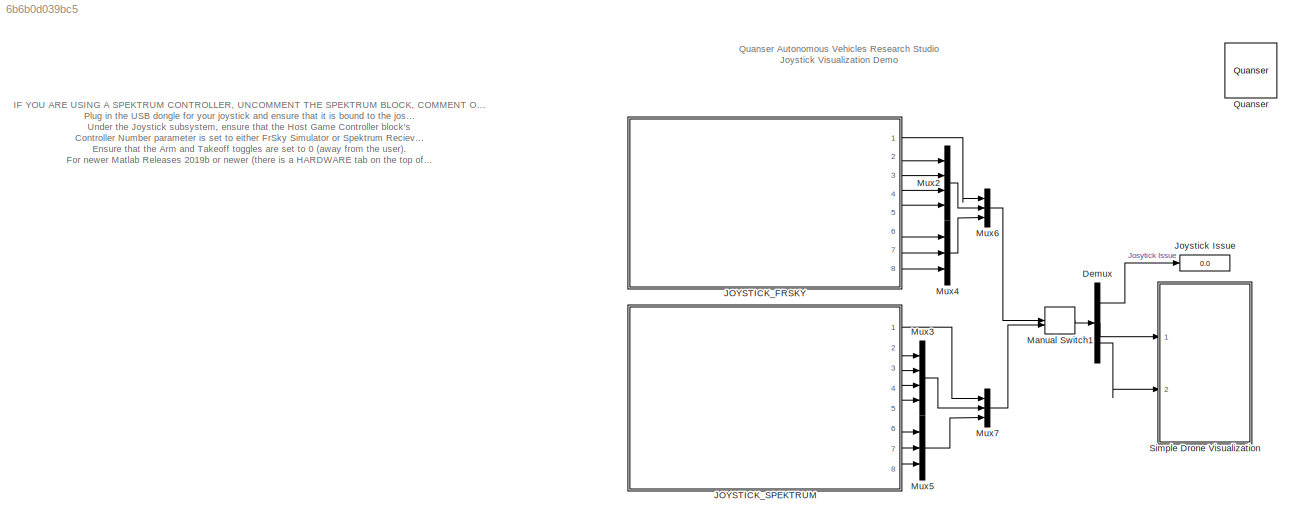
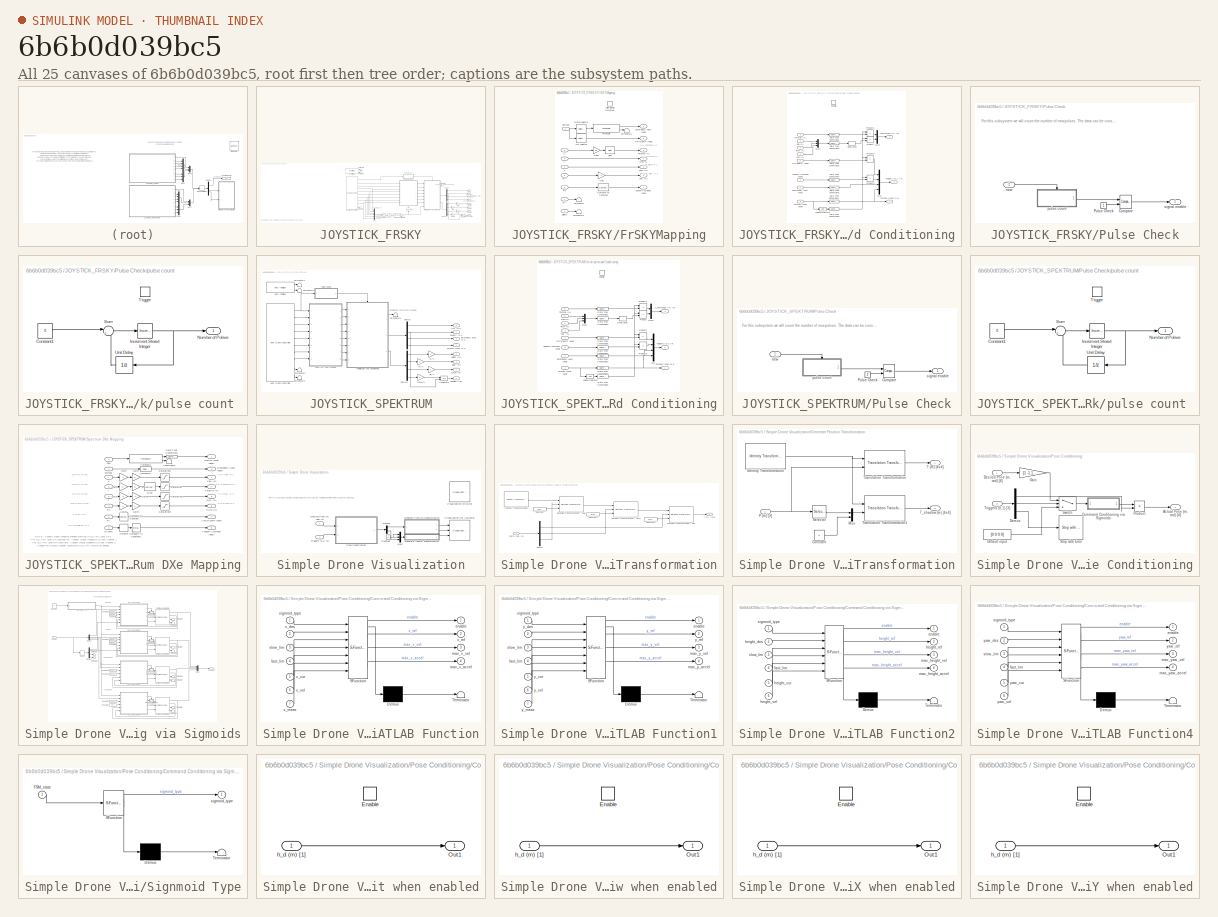
[diagram: thumbnail index - all 25 canvases of the model, root first then tree order]
MODEL slx_6b6b0d039bc5
KIND model
CONFIG AbsTol = auto
CONFIG EnableMultiTasking = on
CONFIG FixedStep = 0.001
CONFIG MaxStep = auto
CONFIG MinStep = auto
CONFIG RelTol = 1e-3
CONFIG SampleTimeConstraint = Unconstrained
CONFIG Solver = ode1
CONFIG SolverName = ode1
CONFIG StartTime = 0.0
CONFIG StopTime = inf
BLOCK [Demux] Demux
  Outputs = [1 4 3]
  Ports = [1, 3]
BLOCK [SubSystem] JOYSTICK_FRSKY
  Ports = [0, 8]
BLOCK [Gain] JOYSTICK_FRSKY/  m//%  
BLOCK [Gain] JOYSTICK_FRSKY/ m//% 
BLOCK [Gain] JOYSTICK_FRSKY/ rad//s//%
BLOCK [Logic] JOYSTICK_FRSKY/AND
  AllPortsSameDT = off
  Inputs = 1
  OutDataTypeStr = boolean
  Ports = [1, 1]
BLOCK [Outport] JOYSTICK_FRSKY/Arm (0,1)
  Port = 6
  VectorParamsAs1DForOutWhenUnconnected = off
BLOCK [Reference] JOYSTICK_FRSKY/Compare  REF=quarc_library/Logic Operations/Compare
  Ports = [2, 1]
  SourceBlock = quarc_library/Logic Operations/Compare
  SourceProductName = QUARC Targets
  SourceType = Compare
BLOCK [Constant] JOYSTICK_FRSKY/Constant
  Value = -1*ones(1,6)
BLOCK [Demux] JOYSTICK_FRSKY/Demux
  Ports = [1, 4]
BLOCK [Demux] JOYSTICK_FRSKY/Demux1
  Ports = [1, 4]
BLOCK [Outport] JOYSTICK_FRSKY/Emergency Stop (0,1)
  Port = 8
  VectorParamsAs1DForOutWhenUnconnected = off
BLOCK [SubSystem] JOYSTICK_FRSKY/FrSKYMapping
  Ports = [8, 7, 1]
BLOCK [Selector] JOYSTICK_FRSKY/FrSKYMapping/Arm selector
  IndexOptions = Index vector (dialog)
  Indices = [2]
  InputPortWidth = 32
  OutputSizes = 1
  Ports = [1, 1]
BLOCK [Outport] JOYSTICK_FRSKY/FrSKYMapping/Arm//Disarm (bool) 
  Port = 6
  VectorParamsAs1DForOutWhenUnconnected = off
BLOCK [Bias] JOYSTICK_FRSKY/FrSKYMapping/Bias
  Bias = 0.5
  SaturateOnIntegerOverflow = off
BLOCK [Inport] JOYSTICK_FRSKY/FrSKYMapping/Buttons
BLOCK [Reference] JOYSTICK_FRSKY/FrSKYMapping/Compare To Constant  REF=simulink/Logic and Bit
Operations/Compare
To Constant
  Ports = [1, 1]
  SourceBlock = simulink/Logic and Bit\nOperations/Compare\nTo Constant
  SourceType = Compare To Constant
BLOCK [Selector] JOYSTICK_FRSKY/FrSKYMapping/E-Stop Selector
  IndexOptions = Index vector (dialog)
  Indices = [1]
  InputPortWidth = 32
  OutputSizes = 1
  Ports = [1, 1]
BLOCK [Outport] JOYSTICK_FRSKY/FrSKYMapping/Emergency Abort (bool)
  VectorParamsAs1DForOutWhenUnconnected = off
BLOCK [Gain] JOYSTICK_FRSKY/FrSKYMapping/Gain
  Gain = -1
BLOCK [Gain] JOYSTICK_FRSKY/FrSKYMapping/Gain1
  Gain = 0.5
BLOCK [Outport] JOYSTICK_FRSKY/FrSKYMapping/Pitch (%)
  Port = 5
  VectorParamsAs1DForOutWhenUnconnected = off
BLOCK [Outport] JOYSTICK_FRSKY/FrSKYMapping/Roll (%)
  Port = 4
  VectorParamsAs1DForOutWhenUnconnected = off
BLOCK [Inport] JOYSTICK_FRSKY/FrSKYMapping/Rx
  Port = 6
BLOCK [Inport] JOYSTICK_FRSKY/FrSKYMapping/Ry
  Port = 7
BLOCK [Inport] JOYSTICK_FRSKY/FrSKYMapping/Rz
  Port = 8
BLOCK [Inport] JOYSTICK_FRSKY/FrSKYMapping/Sliders
  Port = 2
BLOCK [Outport] JOYSTICK_FRSKY/FrSKYMapping/Takeoff//Autoland (bool)
  Port = 7
  VectorParamsAs1DForOutWhenUnconnected = off
BLOCK [Terminator] JOYSTICK_FRSKY/FrSKYMapping/Terminator
BLOCK [Terminator] JOYSTICK_FRSKY/FrSKYMapping/Terminator1
BLOCK [Terminator] JOYSTICK_FRSKY/FrSKYMapping/Terminator2
BLOCK [Reference] JOYSTICK_FRSKY/FrSKYMapping/Threshold  REF=quarc_library/Discontinuities/Threshold
  Ports = [1, 2]
  SourceBlock = quarc_library/Discontinuities/Threshold
  SourceProductName = QUARC Targets
  SourceType = Threshold
BLOCK [Outport] JOYSTICK_FRSKY/FrSKYMapping/Throttle (%)
  Port = 3
  VectorParamsAs1DForOutWhenUnconnected = off
BLOCK [EnablePort] JOYSTICK_FRSKY/FrSKYMapping/Valid Signals Detected
  Ports = []
BLOCK [Outport] JOYSTICK_FRSKY/FrSKYMapping/Yaw (%)
  Port = 2
  VectorParamsAs1DForOutWhenUnconnected = off
BLOCK [Inport] JOYSTICK_FRSKY/FrSKYMapping/x
  Port = 3
BLOCK [Inport] JOYSTICK_FRSKY/FrSKYMapping/y
  Port = 4
BLOCK [Inport] JOYSTICK_FRSKY/FrSKYMapping/z
  Port = 5
BLOCK [Outport] JOYSTICK_FRSKY/Heading (rad) 
  Port = 5
  VectorParamsAs1DForOutWhenUnconnected = off
BLOCK [Outport] JOYSTICK_FRSKY/Height (m) 
  Port = 4
  VectorParamsAs1DForOutWhenUnconnected = off
BLOCK [Reference] JOYSTICK_FRSKY/Host Game Controller  REF=quarc_library/Devices/Peripherals/Host/Host Game Controller
  Ports = [0, 10]
  SourceBlock = quarc_library/Devices/Peripherals/Host/Host Game Controller
  SourceProductName = QUARC Targets
  SourceType = Host Game Controller
BLOCK [Reference] JOYSTICK_FRSKY/Host Initialize  REF=quarc_library/Devices/Peripherals/Host/Host Initialize
  Ports = [0, 2]
  SourceBlock = quarc_library/Devices/Peripherals/Host/Host Initialize
  SourceProductName = QUARC Targets
  SourceType = Host Initialize
BLOCK [SubSystem] JOYSTICK_FRSKY/Initialization and Conditioning
  Ports = [8, 3, 1]
  TreatAsAtomicUnit = on
BLOCK [Inport] JOYSTICK_FRSKY/Initialization and Conditioning/Arm//Disarm (bool)
  Port = 6
BLOCK [Outport] JOYSTICK_FRSKY/Initialization and Conditioning/Commands (%) [4]
  InitialOutput = 0
  Port = 3
  VectorParamsAs1DForOutWhenUnconnected = off
BLOCK [DataTypeConversion] JOYSTICK_FRSKY/Initialization and Conditioning/Data Type Conversion1
  RndMeth = Floor
  SaturateOnIntegerOverflow = off
BLOCK [DataTypeConversion] JOYSTICK_FRSKY/Initialization and Conditioning/Data Type Conversion2
  RndMeth = Floor
  SaturateOnIntegerOverflow = off
BLOCK [DataTypeConversion] JOYSTICK_FRSKY/Initialization and Conditioning/Data Type Conversion3
  RndMeth = Floor
  SaturateOnIntegerOverflow = off
BLOCK [DataTypeConversion] JOYSTICK_FRSKY/Initialization and Conditioning/Data Type Conversion4
  RndMeth = Floor
  SaturateOnIntegerOverflow = off
BLOCK [DataTypeConversion] JOYSTICK_FRSKY/Initialization and Conditioning/Data Type Conversion5
  RndMeth = Floor
  SaturateOnIntegerOverflow = off
BLOCK [DataTypeConversion] JOYSTICK_FRSKY/Initialization and Conditioning/Data Type Conversion6
  RndMeth = Floor
  SaturateOnIntegerOverflow = off
BLOCK [DataTypeConversion] JOYSTICK_FRSKY/Initialization and Conditioning/Data Type Conversion7
  RndMeth = Floor
  SaturateOnIntegerOverflow = off
BLOCK [DeadZone] JOYSTICK_FRSKY/Initialization and Conditioning/Dead Zone
  LowerValue = -0.01
  UpperValue = 0.01
BLOCK [Inport] JOYSTICK_FRSKY/Initialization and Conditioning/Emergency Abort (bool)
BLOCK [EnablePort] JOYSTICK_FRSKY/Initialization and Conditioning/Enable
  Ports = []
  StatesWhenEnabling = reset
BLOCK [Outport] JOYSTICK_FRSKY/Initialization and Conditioning/Joystick Issue (0,1)
  InitialOutput = 0
  VectorParamsAs1DForOutWhenUnconnected = off
BLOCK [Inport] JOYSTICK_FRSKY/Initialization and Conditioning/Joystick Issue (bool)
  Port = 8
BLOCK [Logic] JOYSTICK_FRSKY/Initialization and Conditioning/Logical Operator
  AllPortsSameDT = off
  Operator = NOT
  OutDataTypeStr = boolean
  Ports = [1, 1]
BLOCK [Mux] JOYSTICK_FRSKY/Initialization and Conditioning/Mux
  DisplayOption = bar
  Ports = [4, 1]
BLOCK [Mux] JOYSTICK_FRSKY/Initialization and Conditioning/Mux1
  DisplayOption = bar
  Inputs = 3
  Ports = [3, 1]
BLOCK [Mux] JOYSTICK_FRSKY/Initialization and Conditioning/Mux2
  DisplayOption = bar
  Inputs = 2
  Ports = [2, 1]
BLOCK [Inport] JOYSTICK_FRSKY/Initialization and Conditioning/Pitch (%)
  Port = 5
BLOCK [Product] JOYSTICK_FRSKY/Initialization and Conditioning/Product
  Ports = [2, 1]
BLOCK [Product] JOYSTICK_FRSKY/Initialization and Conditioning/Product1
  Ports = [2, 1]
BLOCK [Product] JOYSTICK_FRSKY/Initialization and Conditioning/Product2
  Ports = [2, 1]
BLOCK [Product] JOYSTICK_FRSKY/Initialization and Conditioning/Product3
  Ports = [2, 1]
BLOCK [Inport] JOYSTICK_FRSKY/Initialization and Conditioning/Roll (%)
  Port = 4
BLOCK [Inport] JOYSTICK_FRSKY/Initialization and Conditioning/Takeoff//AutoLand (bool)
  Port = 7
BLOCK [Inport] JOYSTICK_FRSKY/Initialization and Conditioning/Throttle (%)
  Port = 3
BLOCK [Outport] JOYSTICK_FRSKY/Initialization and Conditioning/Triggers (0,1) [4]
  InitialOutput = 0
  Port = 2
  VectorParamsAs1DForOutWhenUnconnected = off
BLOCK [Inport] JOYSTICK_FRSKY/Initialization and Conditioning/Yaw (%)
  Port = 2
BLOCK [Integrator] JOYSTICK_FRSKY/Integrator
  ExternalReset = falling
  Ports = [2, 1]
BLOCK [Outport] JOYSTICK_FRSKY/Joystick Issue (0,1)
  VectorParamsAs1DForOutWhenUnconnected = off
BLOCK [Mux] JOYSTICK_FRSKY/Mux
  DisplayOption = bar
  Inputs = 6
  Ports = [6, 1]
BLOCK [Logic] JOYSTICK_FRSKY/NOT
  AllPortsSameDT = off
  IconShape = distinctive
  Operator = NOT
  OutDataTypeStr = boolean
  Ports = [1, 1]
BLOCK [SubSystem] JOYSTICK_FRSKY/Pulse Check
  Ports = [1, 1]
  TreatAsAtomicUnit = on
BLOCK [Reference] JOYSTICK_FRSKY/Pulse Check/Compare  REF=quarc_library/Logic Operations/Compare
  Ports = [2, 1]
  SourceBlock = quarc_library/Logic Operations/Compare
  SourceProductName = QUARC Targets
  SourceType = Compare
BLOCK [Constant] JOYSTICK_FRSKY/Pulse Check/Pulse Check
BLOCK [Inport] JOYSTICK_FRSKY/Pulse Check/new
BLOCK [SubSystem] JOYSTICK_FRSKY/Pulse Check/pulse count 
  Ports = [0, 1, 0, 1]
  TreatAsAtomicUnit = on
BLOCK [Constant] JOYSTICK_FRSKY/Pulse Check/pulse count /Constant1
  Value = 0
BLOCK [Reference] JOYSTICK_FRSKY/Pulse Check/pulse count /Increment Stored Integer  REF=simulink/Additional Math
& Discrete/Additional Math:
Increment - Decrement/Increment
Stored Integer
  Ports = [1, 1]
  SourceBlock = simulink/Additional Math\n& Discrete/Additional Math:\nIncrement - Decrement/Increment\nStored Integer
  SourceType = Stored Integer Value Increment
BLOCK [Outport] JOYSTICK_FRSKY/Pulse Check/pulse count /Number of Pulses
  VectorParamsAs1DForOutWhenUnconnected = off
BLOCK [Sum] JOYSTICK_FRSKY/Pulse Check/pulse count /Sum
  Inputs = |++
  Ports = [2, 1]
BLOCK [TriggerPort] JOYSTICK_FRSKY/Pulse Check/pulse count /Trigger
  Ports = []
  StatesWhenEnabling = held
  TriggerType = either
  VariantControl = Variant
BLOCK [UnitDelay] JOYSTICK_FRSKY/Pulse Check/pulse count /Unit Delay
  HasFrameUpgradeWarning = on
  SampleTime = -1
BLOCK [Outport] JOYSTICK_FRSKY/Pulse Check/signal enable
  InitialOutput = 0
  VectorParamsAs1DForOutWhenUnconnected = off
BLOCK [Outport] JOYSTICK_FRSKY/Surge (m) 
  Port = 2
  VectorParamsAs1DForOutWhenUnconnected = off
BLOCK [Outport] JOYSTICK_FRSKY/Sway (m) 
  Port = 3
  VectorParamsAs1DForOutWhenUnconnected = off
BLOCK [Outport] JOYSTICK_FRSKY/Takeoff (0,1)
  Port = 7
  VectorParamsAs1DForOutWhenUnconnected = off
BLOCK [Terminator] JOYSTICK_FRSKY/Terminator
BLOCK [Terminator] JOYSTICK_FRSKY/Terminator1
BLOCK [Terminator] JOYSTICK_FRSKY/Terminator2
BLOCK [Terminator] JOYSTICK_FRSKY/Terminator3
BLOCK [Terminator] JOYSTICK_FRSKY/Terminator4
BLOCK [Reference] JOYSTICK_FRSKY/Threshold  REF=quarc_library/Discontinuities/Threshold
  Ports = [1, 2]
  SourceBlock = quarc_library/Discontinuities/Threshold
  SourceProductName = QUARC Targets
  SourceType = Threshold
BLOCK [Gain] JOYSTICK_FRSKY/m//%
BLOCK [SubSystem] JOYSTICK_SPEKTRUM
  Commented = on
  Ports = [0, 8]
BLOCK [Gain] JOYSTICK_SPEKTRUM/  m//%  
BLOCK [Gain] JOYSTICK_SPEKTRUM/ m//% 
BLOCK [Gain] JOYSTICK_SPEKTRUM/ rad//s//%
BLOCK [Outport] JOYSTICK_SPEKTRUM/Arm (0,1)
  Port = 6
  VectorParamsAs1DForOutWhenUnconnected = off
BLOCK [Demux] JOYSTICK_SPEKTRUM/Demux
  Ports = [1, 4]
BLOCK [Demux] JOYSTICK_SPEKTRUM/Demux1
  Ports = [1, 4]
BLOCK [Outport] JOYSTICK_SPEKTRUM/Emergency Stop (0,1)
  Port = 8
  VectorParamsAs1DForOutWhenUnconnected = off
BLOCK [Outport] JOYSTICK_SPEKTRUM/Heading (rad) 
  Port = 5
  VectorParamsAs1DForOutWhenUnconnected = off
BLOCK [Outport] JOYSTICK_SPEKTRUM/Height (m) 
  Port = 4
  VectorParamsAs1DForOutWhenUnconnected = off
BLOCK [Reference] JOYSTICK_SPEKTRUM/Host Game Controller  REF=quarc_library/Devices/Peripherals/Host/Host Game Controller
  Ports = [0, 10]
  SourceBlock = quarc_library/Devices/Peripherals/Host/Host Game Controller
  SourceProductName = QUARC Targets
  SourceType = Host Game Controller
BLOCK [Reference] JOYSTICK_SPEKTRUM/Host Initialize  REF=quarc_library/Devices/Peripherals/Host/Host Initialize
  Ports = [0, 2]
  SourceBlock = quarc_library/Devices/Peripherals/Host/Host Initialize
  SourceProductName = QUARC Targets
  SourceType = Host Initialize
BLOCK [SubSystem] JOYSTICK_SPEKTRUM/Initialization and Conditioning
  Ports = [8, 3, 1]
  TreatAsAtomicUnit = on
BLOCK [Inport] JOYSTICK_SPEKTRUM/Initialization and Conditioning/Arm//Disarm (bool)
  Port = 7
BLOCK [Outport] JOYSTICK_SPEKTRUM/Initialization and Conditioning/Commands (%) [4]
  InitialOutput = 0
  Port = 3
  VectorParamsAs1DForOutWhenUnconnected = off
BLOCK [DataTypeConversion] JOYSTICK_SPEKTRUM/Initialization and Conditioning/Data Type Conversion1
  RndMeth = Floor
  SaturateOnIntegerOverflow = off
BLOCK [DataTypeConversion] JOYSTICK_SPEKTRUM/Initialization and Conditioning/Data Type Conversion2
  RndMeth = Floor
  SaturateOnIntegerOverflow = off
BLOCK [DataTypeConversion] JOYSTICK_SPEKTRUM/Initialization and Conditioning/Data Type Conversion3
  RndMeth = Floor
  SaturateOnIntegerOverflow = off
BLOCK [DataTypeConversion] JOYSTICK_SPEKTRUM/Initialization and Conditioning/Data Type Conversion4
  RndMeth = Floor
  SaturateOnIntegerOverflow = off
BLOCK [DataTypeConversion] JOYSTICK_SPEKTRUM/Initialization and Conditioning/Data Type Conversion5
  RndMeth = Floor
  SaturateOnIntegerOverflow = off
BLOCK [DataTypeConversion] JOYSTICK_SPEKTRUM/Initialization and Conditioning/Data Type Conversion6
  RndMeth = Floor
  SaturateOnIntegerOverflow = off
BLOCK [DataTypeConversion] JOYSTICK_SPEKTRUM/Initialization and Conditioning/Data Type Conversion7
  RndMeth = Floor
  SaturateOnIntegerOverflow = off
BLOCK [DeadZone] JOYSTICK_SPEKTRUM/Initialization and Conditioning/Dead Zone
  LowerValue = -0.01
  UpperValue = 0.01
BLOCK [Inport] JOYSTICK_SPEKTRUM/Initialization and Conditioning/Emergency Abort (bool)
  Port = 2
BLOCK [EnablePort] JOYSTICK_SPEKTRUM/Initialization and Conditioning/Enable
  Ports = []
  StatesWhenEnabling = reset
BLOCK [Outport] JOYSTICK_SPEKTRUM/Initialization and Conditioning/Joystick Issue (0,1)
  InitialOutput = 0
  VectorParamsAs1DForOutWhenUnconnected = off
BLOCK [Inport] JOYSTICK_SPEKTRUM/Initialization and Conditioning/Joystick Issue (bool)
BLOCK [Logic] JOYSTICK_SPEKTRUM/Initialization and Conditioning/Logical Operator
  AllPortsSameDT = off
  Operator = NOT
  OutDataTypeStr = boolean
  Ports = [1, 1]
BLOCK [Mux] JOYSTICK_SPEKTRUM/Initialization and Conditioning/Mux
  DisplayOption = bar
  Ports = [4, 1]
BLOCK [Mux] JOYSTICK_SPEKTRUM/Initialization and Conditioning/Mux1
  DisplayOption = bar
  Inputs = 3
  Ports = [3, 1]
BLOCK [Mux] JOYSTICK_SPEKTRUM/Initialization and Conditioning/Mux2
  DisplayOption = bar
  Inputs = 2
  Ports = [2, 1]
BLOCK [Inport] JOYSTICK_SPEKTRUM/Initialization and Conditioning/Pitch (%)
  Port = 6
BLOCK [Product] JOYSTICK_SPEKTRUM/Initialization and Conditioning/Product
  Ports = [2, 1]
BLOCK [Product] JOYSTICK_SPEKTRUM/Initialization and Conditioning/Product1
  Ports = [2, 1]
BLOCK [Product] JOYSTICK_SPEKTRUM/Initialization and Conditioning/Product2
  Ports = [2, 1]
BLOCK [Product] JOYSTICK_SPEKTRUM/Initialization and Conditioning/Product3
  Ports = [2, 1]
BLOCK [Inport] JOYSTICK_SPEKTRUM/Initialization and Conditioning/Roll (%)
  Port = 5
BLOCK [Inport] JOYSTICK_SPEKTRUM/Initialization and Conditioning/Takeoff//AutoLand (bool)
  Port = 8
BLOCK [Inport] JOYSTICK_SPEKTRUM/Initialization and Conditioning/Throttle (%)
  Port = 4
BLOCK [Outport] JOYSTICK_SPEKTRUM/Initialization and Conditioning/Triggers (0,1) [4]
  InitialOutput = 0
  Port = 2
  VectorParamsAs1DForOutWhenUnconnected = off
BLOCK [Inport] JOYSTICK_SPEKTRUM/Initialization and Conditioning/Yaw (%)
  Port = 3
BLOCK [Integrator] JOYSTICK_SPEKTRUM/Integrator
  ExternalReset = falling
  Ports = [2, 1]
BLOCK [Outport] JOYSTICK_SPEKTRUM/Joystick Issue (0,1)
  VectorParamsAs1DForOutWhenUnconnected = off
BLOCK [SubSystem] JOYSTICK_SPEKTRUM/Pulse Check
  Ports = [1, 1]
  TreatAsAtomicUnit = on
BLOCK [Reference] JOYSTICK_SPEKTRUM/Pulse Check/Compare  REF=quarc_library/Logic Operations/Compare
  Ports = [2, 1]
  SourceBlock = quarc_library/Logic Operations/Compare
  SourceProductName = QUARC Targets
  SourceType = Compare
BLOCK [Constant] JOYSTICK_SPEKTRUM/Pulse Check/Pulse Check
  Value = 2
BLOCK [Inport] JOYSTICK_SPEKTRUM/Pulse Check/new
BLOCK [SubSystem] JOYSTICK_SPEKTRUM/Pulse Check/pulse count 
  Ports = [0, 1, 0, 1]
  TreatAsAtomicUnit = on
BLOCK [Constant] JOYSTICK_SPEKTRUM/Pulse Check/pulse count /Constant1
  Value = 0
BLOCK [Reference] JOYSTICK_SPEKTRUM/Pulse Check/pulse count /Increment Stored Integer  REF=simulink/Additional Math
& Discrete/Additional Math:
Increment - Decrement/Increment
Stored Integer
  Ports = [1, 1]
  SourceBlock = simulink/Additional Math\n& Discrete/Additional Math:\nIncrement - Decrement/Increment\nStored Integer
  SourceType = Stored Integer Value Increment
BLOCK [Outport] JOYSTICK_SPEKTRUM/Pulse Check/pulse count /Number of Pulses
  VectorParamsAs1DForOutWhenUnconnected = off
BLOCK [Sum] JOYSTICK_SPEKTRUM/Pulse Check/pulse count /Sum
  Inputs = |++
  Ports = [2, 1]
BLOCK [TriggerPort] JOYSTICK_SPEKTRUM/Pulse Check/pulse count /Trigger
  Ports = []
  StatesWhenEnabling = held
  VariantControl = Variant
BLOCK [UnitDelay] JOYSTICK_SPEKTRUM/Pulse Check/pulse count /Unit Delay
  HasFrameUpgradeWarning = on
  SampleTime = -1
BLOCK [Outport] JOYSTICK_SPEKTRUM/Pulse Check/signal enable
  InitialOutput = 0
  VectorParamsAs1DForOutWhenUnconnected = off
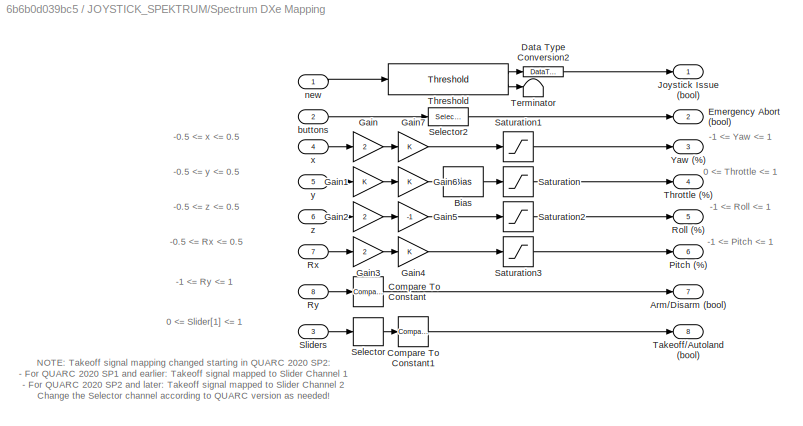
BLOCK [SubSystem] JOYSTICK_SPEKTRUM/Spectrum DXe Mapping
  Ports = [8, 8]
BLOCK [Outport] JOYSTICK_SPEKTRUM/Spectrum DXe Mapping/Arm//Disarm (bool) 
  Port = 7
  VectorParamsAs1DForOutWhenUnconnected = off
BLOCK [Bias] JOYSTICK_SPEKTRUM/Spectrum DXe Mapping/Bias
  Bias = 0.5
  SaturateOnIntegerOverflow = off
BLOCK [Reference] JOYSTICK_SPEKTRUM/Spectrum DXe Mapping/Compare To Constant  REF=simulink/Logic and Bit
Operations/Compare
To Constant
  Ports = [1, 1]
  SourceBlock = simulink/Logic and Bit\nOperations/Compare\nTo Constant
  SourceType = Compare To Constant
BLOCK [Reference] JOYSTICK_SPEKTRUM/Spectrum DXe Mapping/Compare To Constant1  REF=simulink/Logic and Bit
Operations/Compare
To Constant
  Ports = [1, 1]
  SourceBlock = simulink/Logic and Bit\nOperations/Compare\nTo Constant
  SourceType = Compare To Constant
BLOCK [DataTypeConversion] JOYSTICK_SPEKTRUM/Spectrum DXe Mapping/Data Type Conversion2
  RndMeth = Floor
  SaturateOnIntegerOverflow = off
BLOCK [Outport] JOYSTICK_SPEKTRUM/Spectrum DXe Mapping/Emergency Abort (bool)
  Port = 2
  VectorParamsAs1DForOutWhenUnconnected = off
BLOCK [Gain] JOYSTICK_SPEKTRUM/Spectrum DXe Mapping/Gain
  Gain = 2
BLOCK [Gain] JOYSTICK_SPEKTRUM/Spectrum DXe Mapping/Gain1
BLOCK [Gain] JOYSTICK_SPEKTRUM/Spectrum DXe Mapping/Gain2
  Gain = 2
BLOCK [Gain] JOYSTICK_SPEKTRUM/Spectrum DXe Mapping/Gain3
  Gain = 2
BLOCK [Gain] JOYSTICK_SPEKTRUM/Spectrum DXe Mapping/Gain4
BLOCK [Gain] JOYSTICK_SPEKTRUM/Spectrum DXe Mapping/Gain5
  Gain = -1
BLOCK [Gain] JOYSTICK_SPEKTRUM/Spectrum DXe Mapping/Gain6
BLOCK [Gain] JOYSTICK_SPEKTRUM/Spectrum DXe Mapping/Gain7
BLOCK [Outport] JOYSTICK_SPEKTRUM/Spectrum DXe Mapping/Joystick Issue (bool)
  VectorParamsAs1DForOutWhenUnconnected = off
BLOCK [Outport] JOYSTICK_SPEKTRUM/Spectrum DXe Mapping/Pitch (%)
  Port = 6
  VectorParamsAs1DForOutWhenUnconnected = off
BLOCK [Outport] JOYSTICK_SPEKTRUM/Spectrum DXe Mapping/Roll (%)
  Port = 5
  VectorParamsAs1DForOutWhenUnconnected = off
BLOCK [Inport] JOYSTICK_SPEKTRUM/Spectrum DXe Mapping/Rx
  Port = 7
BLOCK [Inport] JOYSTICK_SPEKTRUM/Spectrum DXe Mapping/Ry
  Port = 8
BLOCK [Saturate] JOYSTICK_SPEKTRUM/Spectrum DXe Mapping/Saturation
  LowerLimit = 0
  UpperLimit = 1
BLOCK [Saturate] JOYSTICK_SPEKTRUM/Spectrum DXe Mapping/Saturation1
  LowerLimit = -1
  UpperLimit = 1
BLOCK [Saturate] JOYSTICK_SPEKTRUM/Spectrum DXe Mapping/Saturation2
  LowerLimit = -1
  UpperLimit = 1
BLOCK [Saturate] JOYSTICK_SPEKTRUM/Spectrum DXe Mapping/Saturation3
  LowerLimit = -1
  UpperLimit = 1
BLOCK [Selector] JOYSTICK_SPEKTRUM/Spectrum DXe Mapping/Selector
  IndexOptions = Index vector (dialog)
  Indices = [2]
  InputPortWidth = 2
  OutputSizes = 1
  Ports = [1, 1]
BLOCK [Selector] JOYSTICK_SPEKTRUM/Spectrum DXe Mapping/Selector2
  IndexOptions = Index vector (dialog)
  Indices = [1]
  InputPortWidth = 32
  OutputSizes = 1
  Ports = [1, 1]
BLOCK [Inport] JOYSTICK_SPEKTRUM/Spectrum DXe Mapping/Sliders
  Port = 3
BLOCK [Outport] JOYSTICK_SPEKTRUM/Spectrum DXe Mapping/Takeoff//Autoland (bool)
  Port = 8
  VectorParamsAs1DForOutWhenUnconnected = off
BLOCK [Terminator] JOYSTICK_SPEKTRUM/Spectrum DXe Mapping/Terminator
BLOCK [Reference] JOYSTICK_SPEKTRUM/Spectrum DXe Mapping/Threshold  REF=quarc_library/Discontinuities/Threshold
  Ports = [1, 2]
  SourceBlock = quarc_library/Discontinuities/Threshold
  SourceProductName = QUARC Targets
  SourceType = Threshold
BLOCK [Outport] JOYSTICK_SPEKTRUM/Spectrum DXe Mapping/Throttle (%)
  Port = 4
  VectorParamsAs1DForOutWhenUnconnected = off
BLOCK [Outport] JOYSTICK_SPEKTRUM/Spectrum DXe Mapping/Yaw (%)
  Port = 3
  VectorParamsAs1DForOutWhenUnconnected = off
BLOCK [Inport] JOYSTICK_SPEKTRUM/Spectrum DXe Mapping/buttons
  Port = 2
BLOCK [Inport] JOYSTICK_SPEKTRUM/Spectrum DXe Mapping/new
BLOCK [Inport] JOYSTICK_SPEKTRUM/Spectrum DXe Mapping/x
  Port = 4
BLOCK [Inport] JOYSTICK_SPEKTRUM/Spectrum DXe Mapping/y
  Port = 5
BLOCK [Inport] JOYSTICK_SPEKTRUM/Spectrum DXe Mapping/z
  Port = 6
BLOCK [Outport] JOYSTICK_SPEKTRUM/Surge (m) 
  Port = 2
  VectorParamsAs1DForOutWhenUnconnected = off
BLOCK [Outport] JOYSTICK_SPEKTRUM/Sway (m) 
  Port = 3
  VectorParamsAs1DForOutWhenUnconnected = off
BLOCK [Outport] JOYSTICK_SPEKTRUM/Takeoff (0,1)
  Port = 7
  VectorParamsAs1DForOutWhenUnconnected = off
BLOCK [Terminator] JOYSTICK_SPEKTRUM/Terminator1
BLOCK [Terminator] JOYSTICK_SPEKTRUM/Terminator2
BLOCK [Terminator] JOYSTICK_SPEKTRUM/Terminator3
BLOCK [Terminator] JOYSTICK_SPEKTRUM/Terminator4
BLOCK [Terminator] JOYSTICK_SPEKTRUM/Terminator5
BLOCK [Gain] JOYSTICK_SPEKTRUM/m//%
BLOCK [Display] Joystick Issue
  Decimation = 400
  Ports = [1]
BLOCK [ManualSwitch] Manual Switch1
BLOCK [Mux] Mux2
  DisplayOption = bar
  Ports = [4, 1]
BLOCK [Mux] Mux3
  DisplayOption = bar
  Ports = [4, 1]
BLOCK [Mux] Mux4
  DisplayOption = bar
  Inputs = 3
  Ports = [3, 1]
BLOCK [Mux] Mux5
  DisplayOption = bar
  Inputs = 3
  Ports = [3, 1]
BLOCK [Mux] Mux6
  DisplayOption = bar
  Inputs = 3
  Ports = [3, 1]
BLOCK [Mux] Mux7
  DisplayOption = bar
  Inputs = 3
  Ports = [3, 1]
BLOCK [Reference] Quanser  REF=quarc_library/Logos/Quanser
  Ports = []
  SourceBlock = quarc_library/Logos/Quanser
  SourceProductName = QUARC Targets
  SourceType = Powered by Quanser
BLOCK [SubSystem] Simple Drone Visualization
  Ports = [2]
BLOCK [Constant] Simple Drone Visualization/Constant
  Value = 0
BLOCK [Demux] Simple Drone Visualization/Demux
  Outputs = [3 1]
  Ports = [1, 2]
BLOCK [Inport] Simple Drone Visualization/Desired Pose (m, rad) [4]
BLOCK [SubSystem] Simple Drone Visualization/Generate Angular Transformation
  Ports = [1, 1]
BLOCK [Constant] Simple Drone Visualization/Generate Angular Transformation/Constant
  Value = [0 0 1]
BLOCK [Constant] Simple Drone Visualization/Generate Angular Transformation/Constant1
  Value = [0 1 0]
BLOCK [Constant] Simple Drone Visualization/Generate Angular Transformation/Constant2
  Value = [1 0 0]
BLOCK [Demux] Simple Drone Visualization/Generate Angular Transformation/Demux
  Outputs = 3
  Ports = [1, 3]
BLOCK [Reference] Simple Drone Visualization/Generate Angular Transformation/Identity Transformation  REF=quarc_library/Math Operations/Homogeneous
Transformations/Identity 
Transformation
  Ports = [0, 1]
  SourceBlock = quarc_library/Math Operations/Homogeneous\nTransformations/Identity \nTransformation
  SourceProductName = QUARC Targets
  SourceType = Identity Transformation
BLOCK [Reference] Simple Drone Visualization/Generate Angular Transformation/Rotation Transformation - Pitch  REF=quarc_library/Math Operations/Homogeneous
Transformations/Rotation
Transformation
  Ports = [3, 1]
  SourceBlock = quarc_library/Math Operations/Homogeneous\nTransformations/Rotation\nTransformation
  SourceProductName = QUARC Targets
  SourceType = Rotation Transformation
BLOCK [Reference] Simple Drone Visualization/Generate Angular Transformation/Rotation Transformation - Roll  REF=quarc_library/Math Operations/Homogeneous
Transformations/Rotation
Transformation
  Ports = [3, 1]
  SourceBlock = quarc_library/Math Operations/Homogeneous\nTransformations/Rotation\nTransformation
  SourceProductName = QUARC Targets
  SourceType = Rotation Transformation
BLOCK [Reference] Simple Drone Visualization/Generate Angular Transformation/Rotation Transformation - Yaw  REF=quarc_library/Math Operations/Homogeneous
Transformations/Rotation
Transformation
  Ports = [3, 1]
  SourceBlock = quarc_library/Math Operations/Homogeneous\nTransformations/Rotation\nTransformation
  SourceProductName = QUARC Targets
  SourceType = Rotation Transformation
BLOCK [Outport] Simple Drone Visualization/Generate Angular Transformation/T (m) [4x4]
  VectorParamsAs1DForOutWhenUnconnected = off
BLOCK [Inport] Simple Drone Visualization/Generate Angular Transformation/Theta (rad) [3]
BLOCK [SubSystem] Simple Drone Visualization/Generate Position Transformation
  Ports = [1, 2]
BLOCK [Constant] Simple Drone Visualization/Generate Position Transformation/Constant
  Value = 0
BLOCK [Reference] Simple Drone Visualization/Generate Position Transformation/Identity Transformation  REF=quarc_library/Math Operations/Homogeneous
Transformations/Identity 
Transformation
  Ports = [0, 1]
  SourceBlock = quarc_library/Math Operations/Homogeneous\nTransformations/Identity \nTransformation
  SourceProductName = QUARC Targets
  SourceType = Identity Transformation
BLOCK [Mux] Simple Drone Visualization/Generate Position Transformation/Mux
  DisplayOption = bar
  Inputs = 2
  Ports = [2, 1]
BLOCK [Inport] Simple Drone Visualization/Generate Position Transformation/P (m) [3]
BLOCK [Selector] Simple Drone Visualization/Generate Position Transformation/Selector
  IndexOptions = Index vector (dialog)
  Indices = [1 2]
  InputPortWidth = 3
  OutputSizes = 1
  Ports = [1, 1]
BLOCK [Outport] Simple Drone Visualization/Generate Position Transformation/T (m) [4x4]
  VectorParamsAs1DForOutWhenUnconnected = off
BLOCK [Outport] Simple Drone Visualization/Generate Position Transformation/T_shadow (m) [4x4]
  Port = 2
  VectorParamsAs1DForOutWhenUnconnected = off
BLOCK [Reference] Simple Drone Visualization/Generate Position Transformation/Translation Transformation  REF=quarc_library/Math Operations/Homogeneous
Transformations/Translation
Transformation
  Ports = [2, 1]
  SourceBlock = quarc_library/Math Operations/Homogeneous\nTransformations/Translation\nTransformation
  SourceProductName = QUARC Targets
  SourceType = Translation Transformation
BLOCK [Reference] Simple Drone Visualization/Generate Position Transformation/Translation Transformation1  REF=quarc_library/Math Operations/Homogeneous
Transformations/Translation
Transformation
  Ports = [2, 1]
  SourceBlock = quarc_library/Math Operations/Homogeneous\nTransformations/Translation\nTransformation
  SourceProductName = QUARC Targets
  SourceType = Translation Transformation
BLOCK [Mux] Simple Drone Visualization/Mux2
  DisplayOption = bar
  Inputs = 3
  Ports = [3, 1]
BLOCK [SubSystem] Simple Drone Visualization/Pose Conditioning
  Ports = [2, 1]
BLOCK [Outport] Simple Drone Visualization/Pose Conditioning/Actual Pose (m, rad) [4]
  VectorParamsAs1DForOutWhenUnconnected = off
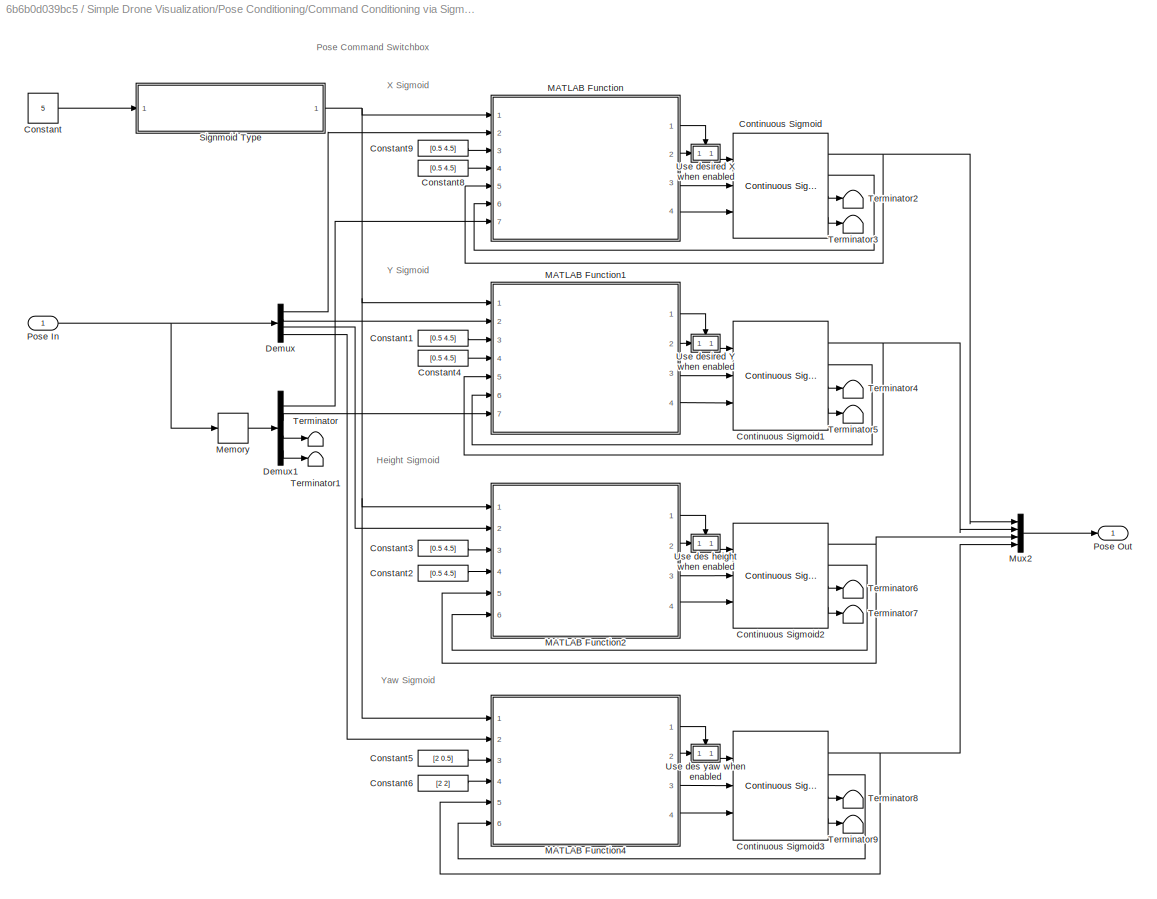
BLOCK [SubSystem] Simple Drone Visualization/Pose Conditioning/Command Conditioning via Sigmoids
  Ports = [1, 1]
BLOCK [Constant] Simple Drone Visualization/Pose Conditioning/Command Conditioning via Sigmoids/Constant
  Value = 5
BLOCK [Constant] Simple Drone Visualization/Pose Conditioning/Command Conditioning via Sigmoids/Constant1
  Value = [0.5 4.5]
BLOCK [Constant] Simple Drone Visualization/Pose Conditioning/Command Conditioning via Sigmoids/Constant2
  Value = [0.5 4.5]
BLOCK [Constant] Simple Drone Visualization/Pose Conditioning/Command Conditioning via Sigmoids/Constant3
  Value = [0.5 4.5]
BLOCK [Constant] Simple Drone Visualization/Pose Conditioning/Command Conditioning via Sigmoids/Constant4
  Value = [0.5 4.5]
BLOCK [Constant] Simple Drone Visualization/Pose Conditioning/Command Conditioning via Sigmoids/Constant5
  Value = [2 0.5]
BLOCK [Constant] Simple Drone Visualization/Pose Conditioning/Command Conditioning via Sigmoids/Constant6
  Value = [2 2]
BLOCK [Constant] Simple Drone Visualization/Pose Conditioning/Command Conditioning via Sigmoids/Constant8
  Value = [0.5 4.5]
BLOCK [Constant] Simple Drone Visualization/Pose Conditioning/Command Conditioning via Sigmoids/Constant9
  Value = [0.5 4.5]
BLOCK [Reference] Simple Drone Visualization/Pose Conditioning/Command Conditioning via Sigmoids/Continuous Sigmoid  REF=quarc_library/Sources/Sigmoids/Continuous Sigmoid
  Ports = [3, 4]
  SourceBlock = quarc_library/Sources/Sigmoids/Continuous Sigmoid
  SourceProductName = QUARC Targets
  SourceType = Continuous Sigmoid
BLOCK [Reference] Simple Drone Visualization/Pose Conditioning/Command Conditioning via Sigmoids/Continuous Sigmoid1  REF=quarc_library/Sources/Sigmoids/Continuous Sigmoid
  Ports = [3, 4]
  SourceBlock = quarc_library/Sources/Sigmoids/Continuous Sigmoid
  SourceProductName = QUARC Targets
  SourceType = Continuous Sigmoid
BLOCK [Reference] Simple Drone Visualization/Pose Conditioning/Command Conditioning via Sigmoids/Continuous Sigmoid2  REF=quarc_library/Sources/Sigmoids/Continuous Sigmoid
  Ports = [3, 4]
  SourceBlock = quarc_library/Sources/Sigmoids/Continuous Sigmoid
  SourceProductName = QUARC Targets
  SourceType = Continuous Sigmoid
BLOCK [Reference] Simple Drone Visualization/Pose Conditioning/Command Conditioning via Sigmoids/Continuous Sigmoid3  REF=quarc_library/Sources/Sigmoids/Continuous Sigmoid
  Ports = [3, 4]
  SourceBlock = quarc_library/Sources/Sigmoids/Continuous Sigmoid
  SourceProductName = QUARC Targets
  SourceType = Continuous Sigmoid
BLOCK [Demux] Simple Drone Visualization/Pose Conditioning/Command Conditioning via Sigmoids/Demux
  Ports = [1, 4]
BLOCK [Demux] Simple Drone Visualization/Pose Conditioning/Command Conditioning via Sigmoids/Demux1
  Ports = [1, 4]
BLOCK [SubSystem] Simple Drone Visualization/Pose Conditioning/Command Conditioning via Sigmoids/MATLAB Function
  ErrorFcn = Stateflow.Translate.translate
  PermitHierarchicalResolution = ExplicitOnly
  Ports = [7, 4]
  SFBlockType = MATLAB Function
  TreatAsAtomicUnit = on
BLOCK [Demux] Simple Drone Visualization/Pose Conditioning/Command Conditioning via Sigmoids/MATLAB Function/ Demux 
  Outputs = 1
  Ports = [1, 1]
BLOCK [S-Function] Simple Drone Visualization/Pose Conditioning/Command Conditioning via Sigmoids/MATLAB Function/ SFunction 
  EnableBusSupport = on
  FunctionName = sf_sfun
  PortCounts = [7 5]
  Ports = [7, 5]
  SFcnIsStateOwnerBlock = off
  SFunctionDeploymentMode = off
  Tag = Stateflow S-Function Joystick_Visualization_2019a1 4
BLOCK [Terminator] Simple Drone Visualization/Pose Conditioning/Command Conditioning via Sigmoids/MATLAB Function/ Terminator 
BLOCK [Outport] Simple Drone Visualization/Pose Conditioning/Command Conditioning via Sigmoids/MATLAB Function/enable
  VectorParamsAs1DForOutWhenUnconnected = off
BLOCK [Inport] Simple Drone Visualization/Pose Conditioning/Command Conditioning via Sigmoids/MATLAB Function/fast_lim
  Port = 4
BLOCK [Outport] Simple Drone Visualization/Pose Conditioning/Command Conditioning via Sigmoids/MATLAB Function/max_x_accel
  Port = 4
  VectorParamsAs1DForOutWhenUnconnected = off
BLOCK [Outport] Simple Drone Visualization/Pose Conditioning/Command Conditioning via Sigmoids/MATLAB Function/max_x_vel
  Port = 3
  VectorParamsAs1DForOutWhenUnconnected = off
BLOCK [Inport] Simple Drone Visualization/Pose Conditioning/Command Conditioning via Sigmoids/MATLAB Function/sigmoid_type
BLOCK [Inport] Simple Drone Visualization/Pose Conditioning/Command Conditioning via Sigmoids/MATLAB Function/slow_lim
  Port = 3
BLOCK [Inport] Simple Drone Visualization/Pose Conditioning/Command Conditioning via Sigmoids/MATLAB Function/x_cur
  Port = 5
BLOCK [Inport] Simple Drone Visualization/Pose Conditioning/Command Conditioning via Sigmoids/MATLAB Function/x_des
  Port = 2
BLOCK [Inport] Simple Drone Visualization/Pose Conditioning/Command Conditioning via Sigmoids/MATLAB Function/x_meas
  Port = 7
BLOCK [Outport] Simple Drone Visualization/Pose Conditioning/Command Conditioning via Sigmoids/MATLAB Function/x_ref
  Port = 2
  VectorParamsAs1DForOutWhenUnconnected = off
BLOCK [Inport] Simple Drone Visualization/Pose Conditioning/Command Conditioning via Sigmoids/MATLAB Function/x_vel
  Port = 6
BLOCK [SubSystem] Simple Drone Visualization/Pose Conditioning/Command Conditioning via Sigmoids/MATLAB Function1
  ErrorFcn = Stateflow.Translate.translate
  PermitHierarchicalResolution = ExplicitOnly
  Ports = [7, 4]
  SFBlockType = MATLAB Function
  TreatAsAtomicUnit = on
BLOCK [Demux] Simple Drone Visualization/Pose Conditioning/Command Conditioning via Sigmoids/MATLAB Function1/ Demux 
  Outputs = 1
  Ports = [1, 1]
BLOCK [S-Function] Simple Drone Visualization/Pose Conditioning/Command Conditioning via Sigmoids/MATLAB Function1/ SFunction 
  EnableBusSupport = on
  FunctionName = sf_sfun
  PortCounts = [7 5]
  Ports = [7, 5]
  SFcnIsStateOwnerBlock = off
  SFunctionDeploymentMode = off
  Tag = Stateflow S-Function Joystick_Visualization_2019a1 5
BLOCK [Terminator] Simple Drone Visualization/Pose Conditioning/Command Conditioning via Sigmoids/MATLAB Function1/ Terminator 
BLOCK [Outport] Simple Drone Visualization/Pose Conditioning/Command Conditioning via Sigmoids/MATLAB Function1/enable
  VectorParamsAs1DForOutWhenUnconnected = off
BLOCK [Inport] Simple Drone Visualization/Pose Conditioning/Command Conditioning via Sigmoids/MATLAB Function1/fast_lim
  Port = 4
BLOCK [Outport] Simple Drone Visualization/Pose Conditioning/Command Conditioning via Sigmoids/MATLAB Function1/max_y_accel
  Port = 4
  VectorParamsAs1DForOutWhenUnconnected = off
BLOCK [Outport] Simple Drone Visualization/Pose Conditioning/Command Conditioning via Sigmoids/MATLAB Function1/max_y_vel
  Port = 3
  VectorParamsAs1DForOutWhenUnconnected = off
BLOCK [Inport] Simple Drone Visualization/Pose Conditioning/Command Conditioning via Sigmoids/MATLAB Function1/sigmoid_type
BLOCK [Inport] Simple Drone Visualization/Pose Conditioning/Command Conditioning via Sigmoids/MATLAB Function1/slow_lim
  Port = 3
BLOCK [Inport] Simple Drone Visualization/Pose Conditioning/Command Conditioning via Sigmoids/MATLAB Function1/y_cur
  Port = 5
BLOCK [Inport] Simple Drone Visualization/Pose Conditioning/Command Conditioning via Sigmoids/MATLAB Function1/y_des
  Port = 2
BLOCK [Inport] Simple Drone Visualization/Pose Conditioning/Command Conditioning via Sigmoids/MATLAB Function1/y_meas
  Port = 7
BLOCK [Outport] Simple Drone Visualization/Pose Conditioning/Command Conditioning via Sigmoids/MATLAB Function1/y_ref
  Port = 2
  VectorParamsAs1DForOutWhenUnconnected = off
BLOCK [Inport] Simple Drone Visualization/Pose Conditioning/Command Conditioning via Sigmoids/MATLAB Function1/y_vel
  Port = 6
BLOCK [SubSystem] Simple Drone Visualization/Pose Conditioning/Command Conditioning via Sigmoids/MATLAB Function2
  ErrorFcn = Stateflow.Translate.translate
  PermitHierarchicalResolution = ExplicitOnly
  Ports = [6, 4]
  SFBlockType = MATLAB Function
  TreatAsAtomicUnit = on
BLOCK [Demux] Simple Drone Visualization/Pose Conditioning/Command Conditioning via Sigmoids/MATLAB Function2/ Demux 
  Outputs = 1
  Ports = [1, 1]
BLOCK [S-Function] Simple Drone Visualization/Pose Conditioning/Command Conditioning via Sigmoids/MATLAB Function2/ SFunction 
  EnableBusSupport = on
  FunctionName = sf_sfun
  PortCounts = [6 5]
  Ports = [6, 5]
  SFcnIsStateOwnerBlock = off
  SFunctionDeploymentMode = off
  Tag = Stateflow S-Function Joystick_Visualization_2019a1 6
BLOCK [Terminator] Simple Drone Visualization/Pose Conditioning/Command Conditioning via Sigmoids/MATLAB Function2/ Terminator 
BLOCK [Outport] Simple Drone Visualization/Pose Conditioning/Command Conditioning via Sigmoids/MATLAB Function2/enable
  VectorParamsAs1DForOutWhenUnconnected = off
BLOCK [Inport] Simple Drone Visualization/Pose Conditioning/Command Conditioning via Sigmoids/MATLAB Function2/fast_lim
  Port = 4
BLOCK [Inport] Simple Drone Visualization/Pose Conditioning/Command Conditioning via Sigmoids/MATLAB Function2/height_cur
  Port = 5
BLOCK [Inport] Simple Drone Visualization/Pose Conditioning/Command Conditioning via Sigmoids/MATLAB Function2/height_des
  Port = 2
BLOCK [Outport] Simple Drone Visualization/Pose Conditioning/Command Conditioning via Sigmoids/MATLAB Function2/height_ref
  Port = 2
  VectorParamsAs1DForOutWhenUnconnected = off
BLOCK [Inport] Simple Drone Visualization/Pose Conditioning/Command Conditioning via Sigmoids/MATLAB Function2/height_vel
  Port = 6
BLOCK [Outport] Simple Drone Visualization/Pose Conditioning/Command Conditioning via Sigmoids/MATLAB Function2/max_height_accel
  Port = 4
  VectorParamsAs1DForOutWhenUnconnected = off
BLOCK [Outport] Simple Drone Visualization/Pose Conditioning/Command Conditioning via Sigmoids/MATLAB Function2/max_height_vel
  Port = 3
  VectorParamsAs1DForOutWhenUnconnected = off
BLOCK [Inport] Simple Drone Visualization/Pose Conditioning/Command Conditioning via Sigmoids/MATLAB Function2/sigmoid_type
BLOCK [Inport] Simple Drone Visualization/Pose Conditioning/Command Conditioning via Sigmoids/MATLAB Function2/slow_lim
  Port = 3
BLOCK [SubSystem] Simple Drone Visualization/Pose Conditioning/Command Conditioning via Sigmoids/MATLAB Function4
  ErrorFcn = Stateflow.Translate.translate
  PermitHierarchicalResolution = ExplicitOnly
  Ports = [6, 4]
  SFBlockType = MATLAB Function
  TreatAsAtomicUnit = on
BLOCK [Demux] Simple Drone Visualization/Pose Conditioning/Command Conditioning via Sigmoids/MATLAB Function4/ Demux 
  Outputs = 1
  Ports = [1, 1]
BLOCK [S-Function] Simple Drone Visualization/Pose Conditioning/Command Conditioning via Sigmoids/MATLAB Function4/ SFunction 
  EnableBusSupport = on
  FunctionName = sf_sfun
  PortCounts = [6 5]
  Ports = [6, 5]
  SFcnIsStateOwnerBlock = off
  SFunctionDeploymentMode = off
  Tag = Stateflow S-Function Joystick_Visualization_2019a1 8
BLOCK [Terminator] Simple Drone Visualization/Pose Conditioning/Command Conditioning via Sigmoids/MATLAB Function4/ Terminator 
BLOCK [Outport] Simple Drone Visualization/Pose Conditioning/Command Conditioning via Sigmoids/MATLAB Function4/enable
  VectorParamsAs1DForOutWhenUnconnected = off
BLOCK [Inport] Simple Drone Visualization/Pose Conditioning/Command Conditioning via Sigmoids/MATLAB Function4/fast_lim
  Port = 4
BLOCK [Outport] Simple Drone Visualization/Pose Conditioning/Command Conditioning via Sigmoids/MATLAB Function4/max_yaw_accel
  Port = 4
  VectorParamsAs1DForOutWhenUnconnected = off
BLOCK [Outport] Simple Drone Visualization/Pose Conditioning/Command Conditioning via Sigmoids/MATLAB Function4/max_yaw_vel
  Port = 3
  VectorParamsAs1DForOutWhenUnconnected = off
BLOCK [Inport] Simple Drone Visualization/Pose Conditioning/Command Conditioning via Sigmoids/MATLAB Function4/sigmoid_type
BLOCK [Inport] Simple Drone Visualization/Pose Conditioning/Command Conditioning via Sigmoids/MATLAB Function4/slow_lim
  Port = 3
BLOCK [Inport] Simple Drone Visualization/Pose Conditioning/Command Conditioning via Sigmoids/MATLAB Function4/yaw_cur
  Port = 5
BLOCK [Inport] Simple Drone Visualization/Pose Conditioning/Command Conditioning via Sigmoids/MATLAB Function4/yaw_des
  Port = 2
BLOCK [Outport] Simple Drone Visualization/Pose Conditioning/Command Conditioning via Sigmoids/MATLAB Function4/yaw_ref
  Port = 2
  VectorParamsAs1DForOutWhenUnconnected = off
BLOCK [Inport] Simple Drone Visualization/Pose Conditioning/Command Conditioning via Sigmoids/MATLAB Function4/yaw_vel
  Port = 6
BLOCK [Memory] Simple Drone Visualization/Pose Conditioning/Command Conditioning via Sigmoids/Memory
BLOCK [Mux] Simple Drone Visualization/Pose Conditioning/Command Conditioning via Sigmoids/Mux2
  DisplayOption = bar
  Ports = [4, 1]
BLOCK [Inport] Simple Drone Visualization/Pose Conditioning/Command Conditioning via Sigmoids/Pose In
BLOCK [Outport] Simple Drone Visualization/Pose Conditioning/Command Conditioning via Sigmoids/Pose Out
  VectorParamsAs1DForOutWhenUnconnected = off
BLOCK [SubSystem] Simple Drone Visualization/Pose Conditioning/Command Conditioning via Sigmoids/Signmoid Type
  ErrorFcn = Stateflow.Translate.translate
  PermitHierarchicalResolution = ExplicitOnly
  Ports = [1, 1]
  SFBlockType = MATLAB Function
  TreatAsAtomicUnit = on
BLOCK [Demux] Simple Drone Visualization/Pose Conditioning/Command Conditioning via Sigmoids/Signmoid Type/ Demux 
  Outputs = 1
  Ports = [1, 1]
BLOCK [S-Function] Simple Drone Visualization/Pose Conditioning/Command Conditioning via Sigmoids/Signmoid Type/ SFunction 
  EnableBusSupport = on
  FunctionName = sf_sfun
  PortCounts = [1 2]
  Ports = [1, 2]
  SFcnIsStateOwnerBlock = off
  SFunctionDeploymentMode = off
  Tag = Stateflow S-Function Joystick_Visualization_2019a1 10
BLOCK [Terminator] Simple Drone Visualization/Pose Conditioning/Command Conditioning via Sigmoids/Signmoid Type/ Terminator 
BLOCK [Inport] Simple Drone Visualization/Pose Conditioning/Command Conditioning via Sigmoids/Signmoid Type/FSM_state
BLOCK [Outport] Simple Drone Visualization/Pose Conditioning/Command Conditioning via Sigmoids/Signmoid Type/sigmoid_type
  VectorParamsAs1DForOutWhenUnconnected = off
BLOCK [Terminator] Simple Drone Visualization/Pose Conditioning/Command Conditioning via Sigmoids/Terminator
BLOCK [Terminator] Simple Drone Visualization/Pose Conditioning/Command Conditioning via Sigmoids/Terminator1
BLOCK [Terminator] Simple Drone Visualization/Pose Conditioning/Command Conditioning via Sigmoids/Terminator2
BLOCK [Terminator] Simple Drone Visualization/Pose Conditioning/Command Conditioning via Sigmoids/Terminator3
BLOCK [Terminator] Simple Drone Visualization/Pose Conditioning/Command Conditioning via Sigmoids/Terminator4
BLOCK [Terminator] Simple Drone Visualization/Pose Conditioning/Command Conditioning via Sigmoids/Terminator5
BLOCK [Terminator] Simple Drone Visualization/Pose Conditioning/Command Conditioning via Sigmoids/Terminator6
BLOCK [Terminator] Simple Drone Visualization/Pose Conditioning/Command Conditioning via Sigmoids/Terminator7
BLOCK [Terminator] Simple Drone Visualization/Pose Conditioning/Command Conditioning via Sigmoids/Terminator8
BLOCK [Terminator] Simple Drone Visualization/Pose Conditioning/Command Conditioning via Sigmoids/Terminator9
BLOCK [SubSystem] Simple Drone Visualization/Pose Conditioning/Command Conditioning via Sigmoids/Use des height when enabled
  Ports = [1, 1, 1]
  TreatAsAtomicUnit = on
BLOCK [EnablePort] Simple Drone Visualization/Pose Conditioning/Command Conditioning via Sigmoids/Use des height when enabled/Enable
  Ports = []
BLOCK [Outport] Simple Drone Visualization/Pose Conditioning/Command Conditioning via Sigmoids/Use des height when enabled/Out1
  InitialOutput = 0
  OutputWhenDisabled = reset
  VectorParamsAs1DForOutWhenUnconnected = off
BLOCK [Inport] Simple Drone Visualization/Pose Conditioning/Command Conditioning via Sigmoids/Use des height when enabled/h_d (m) [1]
BLOCK [SubSystem] Simple Drone Visualization/Pose Conditioning/Command Conditioning via Sigmoids/Use des yaw when enabled
  Ports = [1, 1, 1]
  TreatAsAtomicUnit = on
BLOCK [EnablePort] Simple Drone Visualization/Pose Conditioning/Command Conditioning via Sigmoids/Use des yaw when enabled/Enable
  Ports = []
BLOCK [Outport] Simple Drone Visualization/Pose Conditioning/Command Conditioning via Sigmoids/Use des yaw when enabled/Out1
  InitialOutput = 0
  OutputWhenDisabled = reset
  VectorParamsAs1DForOutWhenUnconnected = off
BLOCK [Inport] Simple Drone Visualization/Pose Conditioning/Command Conditioning via Sigmoids/Use des yaw when enabled/h_d (m) [1]
BLOCK [SubSystem] Simple Drone Visualization/Pose Conditioning/Command Conditioning via Sigmoids/Use desired X when enabled
  Ports = [1, 1, 1]
  TreatAsAtomicUnit = on
BLOCK [EnablePort] Simple Drone Visualization/Pose Conditioning/Command Conditioning via Sigmoids/Use desired X when enabled/Enable
  Ports = []
BLOCK [Outport] Simple Drone Visualization/Pose Conditioning/Command Conditioning via Sigmoids/Use desired X when enabled/Out1
  InitialOutput = 0
  OutputWhenDisabled = reset
  VectorParamsAs1DForOutWhenUnconnected = off
BLOCK [Inport] Simple Drone Visualization/Pose Conditioning/Command Conditioning via Sigmoids/Use desired X when enabled/h_d (m) [1]
BLOCK [SubSystem] Simple Drone Visualization/Pose Conditioning/Command Conditioning via Sigmoids/Use desired Y when enabled
  Ports = [1, 1, 1]
  TreatAsAtomicUnit = on
BLOCK [EnablePort] Simple Drone Visualization/Pose Conditioning/Command Conditioning via Sigmoids/Use desired Y when enabled/Enable
  Ports = []
BLOCK [Outport] Simple Drone Visualization/Pose Conditioning/Command Conditioning via Sigmoids/Use desired Y when enabled/Out1
  InitialOutput = 0
  OutputWhenDisabled = reset
  VectorParamsAs1DForOutWhenUnconnected = off
BLOCK [Inport] Simple Drone Visualization/Pose Conditioning/Command Conditioning via Sigmoids/Use desired Y when enabled/h_d (m) [1]
BLOCK [Constant] Simple Drone Visualization/Pose Conditioning/Default input 
  Value = [0 0 0 0]
BLOCK [Demux] Simple Drone Visualization/Pose Conditioning/Demux
  Outputs = 3
  Ports = [1, 3]
BLOCK [Inport] Simple Drone Visualization/Pose Conditioning/Desired Pose (m, rad) [4]
BLOCK [Gain] Simple Drone Visualization/Pose Conditioning/Gain
  Gain = [1 -1 1 1]
BLOCK [Product] Simple Drone Visualization/Pose Conditioning/Product
  Ports = [2, 1]
BLOCK [Reference] Simple Drone Visualization/Pose Conditioning/Stop with Error  REF=quarc_library/Sinks/Error Handling/Stop with Error
  AttributesFormatString = "%<message>"
  Ports = [1]
  SourceBlock = quarc_library/Sinks/Error Handling/Stop with Error
  SourceProductName = QUARC Targets
  SourceType = Stop with Error
BLOCK [Switch] Simple Drone Visualization/Pose Conditioning/Switch
  Criteria = u2 > Threshold
  InputSameDT = off
  SaturateOnIntegerOverflow = off
BLOCK [Inport] Simple Drone Visualization/Pose Conditioning/Triggers (0,1) [3]
  Port = 2
BLOCK [Inport] Simple Drone Visualization/Triggers (0,1) [3]
  Port = 2
BLOCK [Reference] Simple Drone Visualization/Visualization Initialize  REF=quarc_library/User Interface/Visualization/Visualization Initialize
  AttributesFormatString = %<object_name>
  Ports = []
  SourceBlock = quarc_library/User Interface/Visualization/Visualization Initialize
  SourceProductName = QUARC Targets
  SourceType = Visualization Initialize
BLOCK [Reference] Simple Drone Visualization/Visualization Set Variables  REF=quarc_library/User Interface/Visualization/Visualization Set Variables
  AttributesFormatString = (%<object_name>)
  Ports = [3]
  SourceBlock = quarc_library/User Interface/Visualization/Visualization Set Variables
  SourceProductName = QUARC Targets
  SourceType = Visualization Set Variables
ANNOTATION (root): IF YOU ARE USING A SPEKTRUM CONTROLLER, UNCOMMENT THE SPEKTRUM BLOCK, COMMENT OUT THE FRSKYONE AND FLIP THE MANUAL SWITCH. Plug in the USB dongle for your joystick and ensure that it is bound to the jostick, which needs to be turned ON . Under the Joystick subsystem, ensure that the Host Game Controller block's Controller Number parameter is set to either FrSky Simulator or Spektrum Reciever depen...<+992ch>
ANNOTATION (root): Quanser Autonomous Vehicles Research Studio Joystick Visualization Demo
ANNOTATION JOYSTICK_FRSKY: NOTE: Current release of joystick firmware should read "Quanser V2" which is compatible with the mapping in this model
ANNOTATION JOYSTICK_FRSKY: Signal Error Check
ANNOTATION JOYSTICK_FRSKY: Visualization Command Mapping
ANNOTATION JOYSTICK_FRSKY/FrSKYMapping: -1 <= Pitch <= 1
ANNOTATION JOYSTICK_FRSKY/FrSKYMapping: -1 <= Roll <= 1
ANNOTATION JOYSTICK_FRSKY/FrSKYMapping: -1 <= Yaw <= 1
ANNOTATION JOYSTICK_FRSKY/FrSKYMapping: 0 <= Throttle <= 1
ANNOTATION JOYSTICK_FRSKY/Pulse Check: For this subsystem we will count the number of new pulses. The data can be considered enabled once the count of new signals has gone beyond 1. This will enable the Initializing and conditioning subsystem.
ANNOTATION JOYSTICK_SPEKTRUM: Visualization Command Mapping
ANNOTATION JOYSTICK_SPEKTRUM/Pulse Check: For this subsystem we will count the number of new pulses. The data can be considered enabled once the count of new signals has gone beyond 2. This will enable the Initializing and conditioning subsystem.
ANNOTATION JOYSTICK_SPEKTRUM/Spectrum DXe Mapping: -0.5 <= Rx <= 0.5
ANNOTATION JOYSTICK_SPEKTRUM/Spectrum DXe Mapping: -0.5 <= x <= 0.5
ANNOTATION JOYSTICK_SPEKTRUM/Spectrum DXe Mapping: -0.5 <= y <= 0.5
ANNOTATION JOYSTICK_SPEKTRUM/Spectrum DXe Mapping: -0.5 <= z <= 0.5
ANNOTATION JOYSTICK_SPEKTRUM/Spectrum DXe Mapping: -1 <= Pitch <= 1
ANNOTATION JOYSTICK_SPEKTRUM/Spectrum DXe Mapping: -1 <= Roll <= 1
ANNOTATION JOYSTICK_SPEKTRUM/Spectrum DXe Mapping: -1 <= Ry <= 1
ANNOTATION JOYSTICK_SPEKTRUM/Spectrum DXe Mapping: -1 <= Yaw <= 1
ANNOTATION JOYSTICK_SPEKTRUM/Spectrum DXe Mapping: 0 <= Slider[1] <= 1
ANNOTATION JOYSTICK_SPEKTRUM/Spectrum DXe Mapping: 0 <= Throttle <= 1
ANNOTATION JOYSTICK_SPEKTRUM/Spectrum DXe Mapping: NOTE: Takeoff signal mapping changed starting in QUARC 2020 SP2: - For QUARC 2020 SP1 and earlier: Takeoff signal mapped to Slider Channel 1 - For QUARC 2020 SP2 and later: Takeoff signal mapped to Slider Channel 2 Change the Selector channel according to QUARC version as needed!
ANNOTATION Simple Drone Visualization: This is a simple drone visualization with direct mapping between joystick commands and the drone's pose
ANNOTATION Simple Drone Visualization/Pose Conditioning/Command Conditioning via Sigmoids: Height Sigmoid
ANNOTATION Simple Drone Visualization/Pose Conditioning/Command Conditioning via Sigmoids: Pose Command Switchbox
ANNOTATION Simple Drone Visualization/Pose Conditioning/Command Conditioning via Sigmoids: X Sigmoid
ANNOTATION Simple Drone Visualization/Pose Conditioning/Command Conditioning via Sigmoids: Y Sigmoid
ANNOTATION Simple Drone Visualization/Pose Conditioning/Command Conditioning via Sigmoids: Yaw Sigmoid
LINE Demux:1 -> Joystick Issue:1
LINE Demux:2 -> Simple Drone Visualization:1
LINE Demux:3 -> Simple Drone Visualization:2
LINE JOYSTICK_FRSKY/  m//%  :1 -> JOYSTICK_FRSKY/Surge (m) :1
LINE JOYSTICK_FRSKY/ m//% :1 -> JOYSTICK_FRSKY/Sway (m) :1
LINE JOYSTICK_FRSKY/ rad//s//%:1 -> JOYSTICK_FRSKY/Integrator:1
LINE JOYSTICK_FRSKY/AND:1 -> JOYSTICK_FRSKY/Threshold:1
LINE JOYSTICK_FRSKY/Compare:1 -> JOYSTICK_FRSKY/AND:1
LINE JOYSTICK_FRSKY/Constant:1 -> JOYSTICK_FRSKY/Compare:2
LINE JOYSTICK_FRSKY/Demux1:1 -> JOYSTICK_FRSKY/m//%:1
LINE JOYSTICK_FRSKY/Demux1:2 -> JOYSTICK_FRSKY/ m//% :1
LINE JOYSTICK_FRSKY/Demux1:3 -> JOYSTICK_FRSKY/  m//%  :1
LINE JOYSTICK_FRSKY/Demux1:4 -> JOYSTICK_FRSKY/ rad//s//%:1
LINE JOYSTICK_FRSKY/Demux:1 -> JOYSTICK_FRSKY/Arm (0,1):1
NET JOYSTICK_FRSKY/Demux:2 -> JOYSTICK_FRSKY/Integrator:2, JOYSTICK_FRSKY/Takeoff (0,1):1
LINE JOYSTICK_FRSKY/Demux:3 -> JOYSTICK_FRSKY/Emergency Stop (0,1):1
LINE JOYSTICK_FRSKY/Demux:4 -> JOYSTICK_FRSKY/Joystick Issue (0,1):1
LINE JOYSTICK_FRSKY/FrSKYMapping/Arm selector:1 -> JOYSTICK_FRSKY/FrSKYMapping/Arm//Disarm (bool) :1
LINE JOYSTICK_FRSKY/FrSKYMapping/Bias:1 -> JOYSTICK_FRSKY/FrSKYMapping/Throttle (%):1
NET JOYSTICK_FRSKY/FrSKYMapping/Buttons:1 -> JOYSTICK_FRSKY/FrSKYMapping/Arm selector:1, JOYSTICK_FRSKY/FrSKYMapping/E-Stop Selector:1
LINE JOYSTICK_FRSKY/FrSKYMapping/Compare To Constant:1 -> JOYSTICK_FRSKY/FrSKYMapping/Takeoff//Autoland (bool):1
LINE JOYSTICK_FRSKY/FrSKYMapping/E-Stop Selector:1 -> JOYSTICK_FRSKY/FrSKYMapping/Threshold:1
LINE JOYSTICK_FRSKY/FrSKYMapping/Gain1:1 -> JOYSTICK_FRSKY/FrSKYMapping/Bias:1
LINE JOYSTICK_FRSKY/FrSKYMapping/Gain:1 -> JOYSTICK_FRSKY/FrSKYMapping/Yaw (%):1
LINE JOYSTICK_FRSKY/FrSKYMapping/Rx:1 -> JOYSTICK_FRSKY/FrSKYMapping/Gain:1
LINE JOYSTICK_FRSKY/FrSKYMapping/Ry:1 -> JOYSTICK_FRSKY/FrSKYMapping/Terminator:1
LINE JOYSTICK_FRSKY/FrSKYMapping/Rz:1 -> JOYSTICK_FRSKY/FrSKYMapping/Compare To Constant:1
LINE JOYSTICK_FRSKY/FrSKYMapping/Sliders:1 -> JOYSTICK_FRSKY/FrSKYMapping/Terminator1:1
LINE JOYSTICK_FRSKY/FrSKYMapping/Threshold:1 -> JOYSTICK_FRSKY/FrSKYMapping/Emergency Abort (bool):1
LINE JOYSTICK_FRSKY/FrSKYMapping/Threshold:2 -> JOYSTICK_FRSKY/FrSKYMapping/Terminator2:1
LINE JOYSTICK_FRSKY/FrSKYMapping/x:1 -> JOYSTICK_FRSKY/FrSKYMapping/Gain1:1
LINE JOYSTICK_FRSKY/FrSKYMapping/y:1 -> JOYSTICK_FRSKY/FrSKYMapping/Roll (%):1
LINE JOYSTICK_FRSKY/FrSKYMapping/z:1 -> JOYSTICK_FRSKY/FrSKYMapping/Pitch (%):1
LINE JOYSTICK_FRSKY/FrSKYMapping:1 -> JOYSTICK_FRSKY/Initialization and Conditioning:1
LINE JOYSTICK_FRSKY/FrSKYMapping:2 -> JOYSTICK_FRSKY/Initialization and Conditioning:2
LINE JOYSTICK_FRSKY/FrSKYMapping:3 -> JOYSTICK_FRSKY/Initialization and Conditioning:3
LINE JOYSTICK_FRSKY/FrSKYMapping:4 -> JOYSTICK_FRSKY/Initialization and Conditioning:4
LINE JOYSTICK_FRSKY/FrSKYMapping:5 -> JOYSTICK_FRSKY/Initialization and Conditioning:5
LINE JOYSTICK_FRSKY/FrSKYMapping:6 -> JOYSTICK_FRSKY/Initialization and Conditioning:6
LINE JOYSTICK_FRSKY/FrSKYMapping:7 -> JOYSTICK_FRSKY/Initialization and Conditioning:7
LINE JOYSTICK_FRSKY/Host Game Controller:1 -> JOYSTICK_FRSKY/Pulse Check:1
LINE JOYSTICK_FRSKY/Host Game Controller:10 -> JOYSTICK_FRSKY/Terminator3:1
LINE JOYSTICK_FRSKY/Host Game Controller:2 -> JOYSTICK_FRSKY/FrSKYMapping:1
LINE JOYSTICK_FRSKY/Host Game Controller:3 -> JOYSTICK_FRSKY/FrSKYMapping:2
NET JOYSTICK_FRSKY/Host Game Controller:4 -> JOYSTICK_FRSKY/FrSKYMapping:3, JOYSTICK_FRSKY/Mux:1
NET JOYSTICK_FRSKY/Host Game Controller:5 -> JOYSTICK_FRSKY/FrSKYMapping:4, JOYSTICK_FRSKY/Mux:2
NET JOYSTICK_FRSKY/Host Game Controller:6 -> JOYSTICK_FRSKY/FrSKYMapping:5, JOYSTICK_FRSKY/Mux:3
NET JOYSTICK_FRSKY/Host Game Controller:7 -> JOYSTICK_FRSKY/FrSKYMapping:6, JOYSTICK_FRSKY/Mux:4
NET JOYSTICK_FRSKY/Host Game Controller:8 -> JOYSTICK_FRSKY/FrSKYMapping:7, JOYSTICK_FRSKY/Mux:5
NET JOYSTICK_FRSKY/Host Game Controller:9 -> JOYSTICK_FRSKY/FrSKYMapping:8, JOYSTICK_FRSKY/Mux:6
LINE JOYSTICK_FRSKY/Host Initialize:1 -> JOYSTICK_FRSKY/Terminator4:1
LINE JOYSTICK_FRSKY/Host Initialize:2 -> JOYSTICK_FRSKY/Terminator1:1
LINE JOYSTICK_FRSKY/Initialization and Conditioning/Arm//Disarm (bool):1 -> JOYSTICK_FRSKY/Initialization and Conditioning/Data Type Conversion5:1
LINE JOYSTICK_FRSKY/Initialization and Conditioning/Data Type Conversion1:1 -> JOYSTICK_FRSKY/Initialization and Conditioning/Product1:2
LINE JOYSTICK_FRSKY/Initialization and Conditioning/Data Type Conversion2:1 -> JOYSTICK_FRSKY/Initialization and Conditioning/Mux:3
LINE JOYSTICK_FRSKY/Initialization and Conditioning/Data Type Conversion3:1 -> JOYSTICK_FRSKY/Initialization and Conditioning/Dead Zone:1
NET JOYSTICK_FRSKY/Initialization and Conditioning/Data Type Conversion4:1 -> JOYSTICK_FRSKY/Initialization and Conditioning/Joystick Issue (0,1):1, JOYSTICK_FRSKY/Initialization and Conditioning/Mux:4
LINE JOYSTICK_FRSKY/Initialization and Conditioning/Data Type Conversion5:1 -> JOYSTICK_FRSKY/Initialization and Conditioning/Product2:2
NET JOYSTICK_FRSKY/Initialization and Conditioning/Data Type Conversion6:1 -> JOYSTICK_FRSKY/Initialization and Conditioning/Product1:1, JOYSTICK_FRSKY/Initialization and Conditioning/Product2:1, JOYSTICK_FRSKY/Initialization and Conditioning/Product3:1, JOYSTICK_FRSKY/Initialization and Conditioning/Product:1
LINE JOYSTICK_FRSKY/Initialization and Conditioning/Data Type Conversion7:1 -> JOYSTICK_FRSKY/Initialization and Conditioning/Product3:2
LINE JOYSTICK_FRSKY/Initialization and Conditioning/Dead Zone:1 -> JOYSTICK_FRSKY/Initialization and Conditioning/Product:2
LINE JOYSTICK_FRSKY/Initialization and Conditioning/Emergency Abort (bool):1 -> JOYSTICK_FRSKY/Initialization and Conditioning/Data Type Conversion2:1
NET JOYSTICK_FRSKY/Initialization and Conditioning/Joystick Issue (bool):1 -> JOYSTICK_FRSKY/Initialization and Conditioning/Data Type Conversion4:1, JOYSTICK_FRSKY/Initialization and Conditioning/Logical Operator:1
LINE JOYSTICK_FRSKY/Initialization and Conditioning/Logical Operator:1 -> JOYSTICK_FRSKY/Initialization and Conditioning/Data Type Conversion6:1
LINE JOYSTICK_FRSKY/Initialization and Conditioning/Mux1:1 -> JOYSTICK_FRSKY/Initialization and Conditioning/Data Type Conversion3:1
LINE JOYSTICK_FRSKY/Initialization and Conditioning/Mux2:1 -> JOYSTICK_FRSKY/Initialization and Conditioning/Commands (%) [4]:1
LINE JOYSTICK_FRSKY/Initialization and Conditioning/Mux:1 -> JOYSTICK_FRSKY/Initialization and Conditioning/Triggers (0,1) [4]:1
LINE JOYSTICK_FRSKY/Initialization and Conditioning/Pitch (%):1 -> JOYSTICK_FRSKY/Initialization and Conditioning/Mux1:2
LINE JOYSTICK_FRSKY/Initialization and Conditioning/Product1:1 -> JOYSTICK_FRSKY/Initialization and Conditioning/Mux2:1
LINE JOYSTICK_FRSKY/Initialization and Conditioning/Product2:1 -> JOYSTICK_FRSKY/Initialization and Conditioning/Mux:1
LINE JOYSTICK_FRSKY/Initialization and Conditioning/Product3:1 -> JOYSTICK_FRSKY/Initialization and Conditioning/Mux:2
LINE JOYSTICK_FRSKY/Initialization and Conditioning/Product:1 -> JOYSTICK_FRSKY/Initialization and Conditioning/Mux2:2
LINE JOYSTICK_FRSKY/Initialization and Conditioning/Roll (%):1 -> JOYSTICK_FRSKY/Initialization and Conditioning/Mux1:1
LINE JOYSTICK_FRSKY/Initialization and Conditioning/Takeoff//AutoLand (bool):1 -> JOYSTICK_FRSKY/Initialization and Conditioning/Data Type Conversion7:1
LINE JOYSTICK_FRSKY/Initialization and Conditioning/Throttle (%):1 -> JOYSTICK_FRSKY/Initialization and Conditioning/Data Type Conversion1:1
LINE JOYSTICK_FRSKY/Initialization and Conditioning/Yaw (%):1 -> JOYSTICK_FRSKY/Initialization and Conditioning/Mux1:3
LINE JOYSTICK_FRSKY/Initialization and Conditioning:1 -> JOYSTICK_FRSKY/Terminator2:1
LINE JOYSTICK_FRSKY/Initialization and Conditioning:2 -> JOYSTICK_FRSKY/Demux:1
LINE JOYSTICK_FRSKY/Initialization and Conditioning:3 -> JOYSTICK_FRSKY/Demux1:1
LINE JOYSTICK_FRSKY/Integrator:1 -> JOYSTICK_FRSKY/Heading (rad) :1
LINE JOYSTICK_FRSKY/Mux:1 -> JOYSTICK_FRSKY/Compare:1
LINE JOYSTICK_FRSKY/NOT:1 -> JOYSTICK_FRSKY/FrSKYMapping:enable
LINE JOYSTICK_FRSKY/Pulse Check/Compare:1 -> JOYSTICK_FRSKY/Pulse Check/signal enable:1
LINE JOYSTICK_FRSKY/Pulse Check/Pulse Check:1 -> JOYSTICK_FRSKY/Pulse Check/Compare:2
LINE JOYSTICK_FRSKY/Pulse Check/new:1 -> JOYSTICK_FRSKY/Pulse Check/pulse count :trigger
LINE JOYSTICK_FRSKY/Pulse Check/pulse count /Constant1:1 -> JOYSTICK_FRSKY/Pulse Check/pulse count /Sum:1
NET JOYSTICK_FRSKY/Pulse Check/pulse count /Increment Stored Integer:1 -> JOYSTICK_FRSKY/Pulse Check/pulse count /Number of Pulses:1, JOYSTICK_FRSKY/Pulse Check/pulse count /Unit Delay:1
LINE JOYSTICK_FRSKY/Pulse Check/pulse count /Sum:1 -> JOYSTICK_FRSKY/Pulse Check/pulse count /Increment Stored Integer:1
LINE JOYSTICK_FRSKY/Pulse Check/pulse count /Unit Delay:1 -> JOYSTICK_FRSKY/Pulse Check/pulse count /Sum:2
LINE JOYSTICK_FRSKY/Pulse Check/pulse count :1 -> JOYSTICK_FRSKY/Pulse Check/Compare:1
LINE JOYSTICK_FRSKY/Pulse Check:1 -> JOYSTICK_FRSKY/Initialization and Conditioning:enable
NET JOYSTICK_FRSKY/Threshold:1 -> JOYSTICK_FRSKY/Initialization and Conditioning:8, JOYSTICK_FRSKY/NOT:1
LINE JOYSTICK_FRSKY/Threshold:2 -> JOYSTICK_FRSKY/Terminator:1
LINE JOYSTICK_FRSKY/m//%:1 -> JOYSTICK_FRSKY/Height (m) :1
LINE JOYSTICK_FRSKY:1 -> Mux6:1
LINE JOYSTICK_FRSKY:2 -> Mux2:1
LINE JOYSTICK_FRSKY:3 -> Mux2:2
LINE JOYSTICK_FRSKY:4 -> Mux2:3
LINE JOYSTICK_FRSKY:5 -> Mux2:4
LINE JOYSTICK_FRSKY:6 -> Mux4:1
LINE JOYSTICK_FRSKY:7 -> Mux4:2
LINE JOYSTICK_FRSKY:8 -> Mux4:3
LINE JOYSTICK_SPEKTRUM/  m//%  :1 -> JOYSTICK_SPEKTRUM/Surge (m) :1
LINE JOYSTICK_SPEKTRUM/ m//% :1 -> JOYSTICK_SPEKTRUM/Sway (m) :1
LINE JOYSTICK_SPEKTRUM/ rad//s//%:1 -> JOYSTICK_SPEKTRUM/Integrator:1
LINE JOYSTICK_SPEKTRUM/Demux1:1 -> JOYSTICK_SPEKTRUM/m//%:1
LINE JOYSTICK_SPEKTRUM/Demux1:2 -> JOYSTICK_SPEKTRUM/ m//% :1
LINE JOYSTICK_SPEKTRUM/Demux1:3 -> JOYSTICK_SPEKTRUM/  m//%  :1
LINE JOYSTICK_SPEKTRUM/Demux1:4 -> JOYSTICK_SPEKTRUM/ rad//s//%:1
LINE JOYSTICK_SPEKTRUM/Demux:1 -> JOYSTICK_SPEKTRUM/Arm (0,1):1
NET JOYSTICK_SPEKTRUM/Demux:2 -> JOYSTICK_SPEKTRUM/Integrator:2, JOYSTICK_SPEKTRUM/Takeoff (0,1):1
LINE JOYSTICK_SPEKTRUM/Demux:3 -> JOYSTICK_SPEKTRUM/Emergency Stop (0,1):1
LINE JOYSTICK_SPEKTRUM/Demux:4 -> JOYSTICK_SPEKTRUM/Joystick Issue (0,1):1
NET JOYSTICK_SPEKTRUM/Host Game Controller:1 -> JOYSTICK_SPEKTRUM/Pulse Check:1, JOYSTICK_SPEKTRUM/Spectrum DXe Mapping:1
LINE JOYSTICK_SPEKTRUM/Host Game Controller:10 -> JOYSTICK_SPEKTRUM/Terminator3:1
LINE JOYSTICK_SPEKTRUM/Host Game Controller:2 -> JOYSTICK_SPEKTRUM/Spectrum DXe Mapping:2
LINE JOYSTICK_SPEKTRUM/Host Game Controller:3 -> JOYSTICK_SPEKTRUM/Spectrum DXe Mapping:3
LINE JOYSTICK_SPEKTRUM/Host Game Controller:4 -> JOYSTICK_SPEKTRUM/Spectrum DXe Mapping:4
LINE JOYSTICK_SPEKTRUM/Host Game Controller:5 -> JOYSTICK_SPEKTRUM/Spectrum DXe Mapping:5
LINE JOYSTICK_SPEKTRUM/Host Game Controller:6 -> JOYSTICK_SPEKTRUM/Spectrum DXe Mapping:6
LINE JOYSTICK_SPEKTRUM/Host Game Controller:7 -> JOYSTICK_SPEKTRUM/Spectrum DXe Mapping:7
LINE JOYSTICK_SPEKTRUM/Host Game Controller:8 -> JOYSTICK_SPEKTRUM/Spectrum DXe Mapping:8
LINE JOYSTICK_SPEKTRUM/Host Game Controller:9 -> JOYSTICK_SPEKTRUM/Terminator2:1
LINE JOYSTICK_SPEKTRUM/Host Initialize:1 -> JOYSTICK_SPEKTRUM/Terminator4:1
LINE JOYSTICK_SPEKTRUM/Host Initialize:2 -> JOYSTICK_SPEKTRUM/Terminator1:1
LINE JOYSTICK_SPEKTRUM/Initialization and Conditioning/Arm//Disarm (bool):1 -> JOYSTICK_SPEKTRUM/Initialization and Conditioning/Data Type Conversion5:1
LINE JOYSTICK_SPEKTRUM/Initialization and Conditioning/Data Type Conversion1:1 -> JOYSTICK_SPEKTRUM/Initialization and Conditioning/Product1:2
LINE JOYSTICK_SPEKTRUM/Initialization and Conditioning/Data Type Conversion2:1 -> JOYSTICK_SPEKTRUM/Initialization and Conditioning/Mux:3
LINE JOYSTICK_SPEKTRUM/Initialization and Conditioning/Data Type Conversion3:1 -> JOYSTICK_SPEKTRUM/Initialization and Conditioning/Dead Zone:1
NET JOYSTICK_SPEKTRUM/Initialization and Conditioning/Data Type Conversion4:1 -> JOYSTICK_SPEKTRUM/Initialization and Conditioning/Joystick Issue (0,1):1, JOYSTICK_SPEKTRUM/Initialization and Conditioning/Mux:4
LINE JOYSTICK_SPEKTRUM/Initialization and Conditioning/Data Type Conversion5:1 -> JOYSTICK_SPEKTRUM/Initialization and Conditioning/Product2:2
NET JOYSTICK_SPEKTRUM/Initialization and Conditioning/Data Type Conversion6:1 -> JOYSTICK_SPEKTRUM/Initialization and Conditioning/Product1:1, JOYSTICK_SPEKTRUM/Initialization and Conditioning/Product2:1, JOYSTICK_SPEKTRUM/Initialization and Conditioning/Product3:1, JOYSTICK_SPEKTRUM/Initialization and Conditioning/Product:1
LINE JOYSTICK_SPEKTRUM/Initialization and Conditioning/Data Type Conversion7:1 -> JOYSTICK_SPEKTRUM/Initialization and Conditioning/Product3:2
LINE JOYSTICK_SPEKTRUM/Initialization and Conditioning/Dead Zone:1 -> JOYSTICK_SPEKTRUM/Initialization and Conditioning/Product:2
LINE JOYSTICK_SPEKTRUM/Initialization and Conditioning/Emergency Abort (bool):1 -> JOYSTICK_SPEKTRUM/Initialization and Conditioning/Data Type Conversion2:1
NET JOYSTICK_SPEKTRUM/Initialization and Conditioning/Joystick Issue (bool):1 -> JOYSTICK_SPEKTRUM/Initialization and Conditioning/Data Type Conversion4:1, JOYSTICK_SPEKTRUM/Initialization and Conditioning/Logical Operator:1
LINE JOYSTICK_SPEKTRUM/Initialization and Conditioning/Logical Operator:1 -> JOYSTICK_SPEKTRUM/Initialization and Conditioning/Data Type Conversion6:1
LINE JOYSTICK_SPEKTRUM/Initialization and Conditioning/Mux1:1 -> JOYSTICK_SPEKTRUM/Initialization and Conditioning/Data Type Conversion3:1
LINE JOYSTICK_SPEKTRUM/Initialization and Conditioning/Mux2:1 -> JOYSTICK_SPEKTRUM/Initialization and Conditioning/Commands (%) [4]:1
LINE JOYSTICK_SPEKTRUM/Initialization and Conditioning/Mux:1 -> JOYSTICK_SPEKTRUM/Initialization and Conditioning/Triggers (0,1) [4]:1
LINE JOYSTICK_SPEKTRUM/Initialization and Conditioning/Pitch (%):1 -> JOYSTICK_SPEKTRUM/Initialization and Conditioning/Mux1:2
LINE JOYSTICK_SPEKTRUM/Initialization and Conditioning/Product1:1 -> JOYSTICK_SPEKTRUM/Initialization and Conditioning/Mux2:1
LINE JOYSTICK_SPEKTRUM/Initialization and Conditioning/Product2:1 -> JOYSTICK_SPEKTRUM/Initialization and Conditioning/Mux:1
LINE JOYSTICK_SPEKTRUM/Initialization and Conditioning/Product3:1 -> JOYSTICK_SPEKTRUM/Initialization and Conditioning/Mux:2
LINE JOYSTICK_SPEKTRUM/Initialization and Conditioning/Product:1 -> JOYSTICK_SPEKTRUM/Initialization and Conditioning/Mux2:2
LINE JOYSTICK_SPEKTRUM/Initialization and Conditioning/Roll (%):1 -> JOYSTICK_SPEKTRUM/Initialization and Conditioning/Mux1:1
LINE JOYSTICK_SPEKTRUM/Initialization and Conditioning/Takeoff//AutoLand (bool):1 -> JOYSTICK_SPEKTRUM/Initialization and Conditioning/Data Type Conversion7:1
LINE JOYSTICK_SPEKTRUM/Initialization and Conditioning/Throttle (%):1 -> JOYSTICK_SPEKTRUM/Initialization and Conditioning/Data Type Conversion1:1
LINE JOYSTICK_SPEKTRUM/Initialization and Conditioning/Yaw (%):1 -> JOYSTICK_SPEKTRUM/Initialization and Conditioning/Mux1:3
LINE JOYSTICK_SPEKTRUM/Initialization and Conditioning:1 -> JOYSTICK_SPEKTRUM/Terminator5:1
LINE JOYSTICK_SPEKTRUM/Initialization and Conditioning:2 -> JOYSTICK_SPEKTRUM/Demux:1
LINE JOYSTICK_SPEKTRUM/Initialization and Conditioning:3 -> JOYSTICK_SPEKTRUM/Demux1:1
LINE JOYSTICK_SPEKTRUM/Integrator:1 -> JOYSTICK_SPEKTRUM/Heading (rad) :1
LINE JOYSTICK_SPEKTRUM/Pulse Check/Compare:1 -> JOYSTICK_SPEKTRUM/Pulse Check/signal enable:1
LINE JOYSTICK_SPEKTRUM/Pulse Check/Pulse Check:1 -> JOYSTICK_SPEKTRUM/Pulse Check/Compare:2
LINE JOYSTICK_SPEKTRUM/Pulse Check/new:1 -> JOYSTICK_SPEKTRUM/Pulse Check/pulse count :trigger
LINE JOYSTICK_SPEKTRUM/Pulse Check/pulse count /Constant1:1 -> JOYSTICK_SPEKTRUM/Pulse Check/pulse count /Sum:1
NET JOYSTICK_SPEKTRUM/Pulse Check/pulse count /Increment Stored Integer:1 -> JOYSTICK_SPEKTRUM/Pulse Check/pulse count /Number of Pulses:1, JOYSTICK_SPEKTRUM/Pulse Check/pulse count /Unit Delay:1
LINE JOYSTICK_SPEKTRUM/Pulse Check/pulse count /Sum:1 -> JOYSTICK_SPEKTRUM/Pulse Check/pulse count /Increment Stored Integer:1
LINE JOYSTICK_SPEKTRUM/Pulse Check/pulse count /Unit Delay:1 -> JOYSTICK_SPEKTRUM/Pulse Check/pulse count /Sum:2
LINE JOYSTICK_SPEKTRUM/Pulse Check/pulse count :1 -> JOYSTICK_SPEKTRUM/Pulse Check/Compare:1
LINE JOYSTICK_SPEKTRUM/Pulse Check:1 -> JOYSTICK_SPEKTRUM/Initialization and Conditioning:enable
LINE JOYSTICK_SPEKTRUM/Spectrum DXe Mapping/Bias:1 -> JOYSTICK_SPEKTRUM/Spectrum DXe Mapping/Saturation:1
LINE JOYSTICK_SPEKTRUM/Spectrum DXe Mapping/Compare To Constant1:1 -> JOYSTICK_SPEKTRUM/Spectrum DXe Mapping/Takeoff//Autoland (bool):1
LINE JOYSTICK_SPEKTRUM/Spectrum DXe Mapping/Compare To Constant:1 -> JOYSTICK_SPEKTRUM/Spectrum DXe Mapping/Arm//Disarm (bool) :1
LINE JOYSTICK_SPEKTRUM/Spectrum DXe Mapping/Data Type Conversion2:1 -> JOYSTICK_SPEKTRUM/Spectrum DXe Mapping/Joystick Issue (bool):1
LINE JOYSTICK_SPEKTRUM/Spectrum DXe Mapping/Gain1:1 -> JOYSTICK_SPEKTRUM/Spectrum DXe Mapping/Gain6:1
LINE JOYSTICK_SPEKTRUM/Spectrum DXe Mapping/Gain2:1 -> JOYSTICK_SPEKTRUM/Spectrum DXe Mapping/Gain5:1
LINE JOYSTICK_SPEKTRUM/Spectrum DXe Mapping/Gain3:1 -> JOYSTICK_SPEKTRUM/Spectrum DXe Mapping/Gain4:1
LINE JOYSTICK_SPEKTRUM/Spectrum DXe Mapping/Gain4:1 -> JOYSTICK_SPEKTRUM/Spectrum DXe Mapping/Saturation3:1
LINE JOYSTICK_SPEKTRUM/Spectrum DXe Mapping/Gain5:1 -> JOYSTICK_SPEKTRUM/Spectrum DXe Mapping/Saturation2:1
LINE JOYSTICK_SPEKTRUM/Spectrum DXe Mapping/Gain6:1 -> JOYSTICK_SPEKTRUM/Spectrum DXe Mapping/Bias:1
LINE JOYSTICK_SPEKTRUM/Spectrum DXe Mapping/Gain7:1 -> JOYSTICK_SPEKTRUM/Spectrum DXe Mapping/Saturation1:1
LINE JOYSTICK_SPEKTRUM/Spectrum DXe Mapping/Gain:1 -> JOYSTICK_SPEKTRUM/Spectrum DXe Mapping/Gain7:1
LINE JOYSTICK_SPEKTRUM/Spectrum DXe Mapping/Rx:1 -> JOYSTICK_SPEKTRUM/Spectrum DXe Mapping/Gain3:1
LINE JOYSTICK_SPEKTRUM/Spectrum DXe Mapping/Ry:1 -> JOYSTICK_SPEKTRUM/Spectrum DXe Mapping/Compare To Constant:1
LINE JOYSTICK_SPEKTRUM/Spectrum DXe Mapping/Saturation1:1 -> JOYSTICK_SPEKTRUM/Spectrum DXe Mapping/Yaw (%):1
LINE JOYSTICK_SPEKTRUM/Spectrum DXe Mapping/Saturation2:1 -> JOYSTICK_SPEKTRUM/Spectrum DXe Mapping/Roll (%):1
LINE JOYSTICK_SPEKTRUM/Spectrum DXe Mapping/Saturation3:1 -> JOYSTICK_SPEKTRUM/Spectrum DXe Mapping/Pitch (%):1
LINE JOYSTICK_SPEKTRUM/Spectrum DXe Mapping/Saturation:1 -> JOYSTICK_SPEKTRUM/Spectrum DXe Mapping/Throttle (%):1
LINE JOYSTICK_SPEKTRUM/Spectrum DXe Mapping/Selector2:1 -> JOYSTICK_SPEKTRUM/Spectrum DXe Mapping/Emergency Abort (bool):1
LINE JOYSTICK_SPEKTRUM/Spectrum DXe Mapping/Selector:1 -> JOYSTICK_SPEKTRUM/Spectrum DXe Mapping/Compare To Constant1:1
LINE JOYSTICK_SPEKTRUM/Spectrum DXe Mapping/Sliders:1 -> JOYSTICK_SPEKTRUM/Spectrum DXe Mapping/Selector:1
LINE JOYSTICK_SPEKTRUM/Spectrum DXe Mapping/Threshold:1 -> JOYSTICK_SPEKTRUM/Spectrum DXe Mapping/Data Type Conversion2:1
LINE JOYSTICK_SPEKTRUM/Spectrum DXe Mapping/Threshold:2 -> JOYSTICK_SPEKTRUM/Spectrum DXe Mapping/Terminator:1
LINE JOYSTICK_SPEKTRUM/Spectrum DXe Mapping/buttons:1 -> JOYSTICK_SPEKTRUM/Spectrum DXe Mapping/Selector2:1
LINE JOYSTICK_SPEKTRUM/Spectrum DXe Mapping/new:1 -> JOYSTICK_SPEKTRUM/Spectrum DXe Mapping/Threshold:1
LINE JOYSTICK_SPEKTRUM/Spectrum DXe Mapping/x:1 -> JOYSTICK_SPEKTRUM/Spectrum DXe Mapping/Gain:1
LINE JOYSTICK_SPEKTRUM/Spectrum DXe Mapping/y:1 -> JOYSTICK_SPEKTRUM/Spectrum DXe Mapping/Gain1:1
LINE JOYSTICK_SPEKTRUM/Spectrum DXe Mapping/z:1 -> JOYSTICK_SPEKTRUM/Spectrum DXe Mapping/Gain2:1
LINE JOYSTICK_SPEKTRUM/Spectrum DXe Mapping:1 -> JOYSTICK_SPEKTRUM/Initialization and Conditioning:1
LINE JOYSTICK_SPEKTRUM/Spectrum DXe Mapping:2 -> JOYSTICK_SPEKTRUM/Initialization and Conditioning:2
LINE JOYSTICK_SPEKTRUM/Spectrum DXe Mapping:3 -> JOYSTICK_SPEKTRUM/Initialization and Conditioning:3
LINE JOYSTICK_SPEKTRUM/Spectrum DXe Mapping:4 -> JOYSTICK_SPEKTRUM/Initialization and Conditioning:4
LINE JOYSTICK_SPEKTRUM/Spectrum DXe Mapping:5 -> JOYSTICK_SPEKTRUM/Initialization and Conditioning:5
LINE JOYSTICK_SPEKTRUM/Spectrum DXe Mapping:6 -> JOYSTICK_SPEKTRUM/Initialization and Conditioning:6
LINE JOYSTICK_SPEKTRUM/Spectrum DXe Mapping:7 -> JOYSTICK_SPEKTRUM/Initialization and Conditioning:7
LINE JOYSTICK_SPEKTRUM/Spectrum DXe Mapping:8 -> JOYSTICK_SPEKTRUM/Initialization and Conditioning:8
LINE JOYSTICK_SPEKTRUM/m//%:1 -> JOYSTICK_SPEKTRUM/Height (m) :1
LINE JOYSTICK_SPEKTRUM:1 -> Mux7:1
LINE JOYSTICK_SPEKTRUM:2 -> Mux3:1
LINE JOYSTICK_SPEKTRUM:3 -> Mux3:2
LINE JOYSTICK_SPEKTRUM:4 -> Mux3:3
LINE JOYSTICK_SPEKTRUM:5 -> Mux3:4
LINE JOYSTICK_SPEKTRUM:6 -> Mux5:1
LINE JOYSTICK_SPEKTRUM:7 -> Mux5:2
LINE JOYSTICK_SPEKTRUM:8 -> Mux5:3
LINE Manual Switch1:1 -> Demux:1
LINE Mux2:1 -> Mux6:2
LINE Mux3:1 -> Mux7:2
LINE Mux4:1 -> Mux6:3
LINE Mux5:1 -> Mux7:3
LINE Mux6:1 -> Manual Switch1:1
LINE Mux7:1 -> Manual Switch1:2
NET Simple Drone Visualization/Constant:1 -> Simple Drone Visualization/Mux2:1, Simple Drone Visualization/Mux2:2
LINE Simple Drone Visualization/Demux:1 -> Simple Drone Visualization/Generate Position Transformation:1
LINE Simple Drone Visualization/Demux:2 -> Simple Drone Visualization/Mux2:3
LINE Simple Drone Visualization/Desired Pose (m, rad) [4]:1 -> Simple Drone Visualization/Pose Conditioning:1
LINE Simple Drone Visualization/Generate Angular Transformation/Constant1:1 -> Simple Drone Visualization/Generate Angular Transformation/Rotation Transformation - Pitch:3
LINE Simple Drone Visualization/Generate Angular Transformation/Constant2:1 -> Simple Drone Visualization/Generate Angular Transformation/Rotation Transformation - Roll:3
LINE Simple Drone Visualization/Generate Angular Transformation/Constant:1 -> Simple Drone Visualization/Generate Angular Transformation/Rotation Transformation - Yaw:3
LINE Simple Drone Visualization/Generate Angular Transformation/Demux:1 -> Simple Drone Visualization/Generate Angular Transformation/Rotation Transformation - Roll:2
LINE Simple Drone Visualization/Generate Angular Transformation/Demux:2 -> Simple Drone Visualization/Generate Angular Transformation/Rotation Transformation - Pitch:2
LINE Simple Drone Visualization/Generate Angular Transformation/Demux:3 -> Simple Drone Visualization/Generate Angular Transformation/Rotation Transformation - Yaw:2
LINE Simple Drone Visualization/Generate Angular Transformation/Identity Transformation:1 -> Simple Drone Visualization/Generate Angular Transformation/Rotation Transformation - Yaw:1
LINE Simple Drone Visualization/Generate Angular Transformation/Rotation Transformation - Pitch:1 -> Simple Drone Visualization/Generate Angular Transformation/Rotation Transformation - Roll:1
LINE Simple Drone Visualization/Generate Angular Transformation/Rotation Transformation - Roll:1 -> Simple Drone Visualization/Generate Angular Transformation/T (m) [4x4]:1
LINE Simple Drone Visualization/Generate Angular Transformation/Rotation Transformation - Yaw:1 -> Simple Drone Visualization/Generate Angular Transformation/Rotation Transformation - Pitch:1
LINE Simple Drone Visualization/Generate Angular Transformation/Theta (rad) [3]:1 -> Simple Drone Visualization/Generate Angular Transformation/Demux:1
LINE Simple Drone Visualization/Generate Angular Transformation:1 -> Simple Drone Visualization/Visualization Set Variables:3
LINE Simple Drone Visualization/Generate Position Transformation/Constant:1 -> Simple Drone Visualization/Generate Position Transformation/Mux:2
NET Simple Drone Visualization/Generate Position Transformation/Identity Transformation:1 -> Simple Drone Visualization/Generate Position Transformation/Translation Transformation1:1, Simple Drone Visualization/Generate Position Transformation/Translation Transformation:1
LINE Simple Drone Visualization/Generate Position Transformation/Mux:1 -> Simple Drone Visualization/Generate Position Transformation/Translation Transformation1:2
NET Simple Drone Visualization/Generate Position Transformation/P (m) [3]:1 -> Simple Drone Visualization/Generate Position Transformation/Selector:1, Simple Drone Visualization/Generate Position Transformation/Translation Transformation:2
LINE Simple Drone Visualization/Generate Position Transformation/Selector:1 -> Simple Drone Visualization/Generate Position Transformation/Mux:1
LINE Simple Drone Visualization/Generate Position Transformation/Translation Transformation1:1 -> Simple Drone Visualization/Generate Position Transformation/T_shadow (m) [4x4]:1
LINE Simple Drone Visualization/Generate Position Transformation/Translation Transformation:1 -> Simple Drone Visualization/Generate Position Transformation/T (m) [4x4]:1
LINE Simple Drone Visualization/Generate Position Transformation:1 -> Simple Drone Visualization/Visualization Set Variables:1
LINE Simple Drone Visualization/Generate Position Transformation:2 -> Simple Drone Visualization/Visualization Set Variables:2
LINE Simple Drone Visualization/Mux2:1 -> Simple Drone Visualization/Generate Angular Transformation:1
LINE Simple Drone Visualization/Pose Conditioning/Command Conditioning via Sigmoids/Constant1:1 -> Simple Drone Visualization/Pose Conditioning/Command Conditioning via Sigmoids/MATLAB Function1:3
LINE Simple Drone Visualization/Pose Conditioning/Command Conditioning via Sigmoids/Constant2:1 -> Simple Drone Visualization/Pose Conditioning/Command Conditioning via Sigmoids/MATLAB Function2:4
LINE Simple Drone Visualization/Pose Conditioning/Command Conditioning via Sigmoids/Constant3:1 -> Simple Drone Visualization/Pose Conditioning/Command Conditioning via Sigmoids/MATLAB Function2:3
LINE Simple Drone Visualization/Pose Conditioning/Command Conditioning via Sigmoids/Constant4:1 -> Simple Drone Visualization/Pose Conditioning/Command Conditioning via Sigmoids/MATLAB Function1:4
LINE Simple Drone Visualization/Pose Conditioning/Command Conditioning via Sigmoids/Constant5:1 -> Simple Drone Visualization/Pose Conditioning/Command Conditioning via Sigmoids/MATLAB Function4:3
LINE Simple Drone Visualization/Pose Conditioning/Command Conditioning via Sigmoids/Constant6:1 -> Simple Drone Visualization/Pose Conditioning/Command Conditioning via Sigmoids/MATLAB Function4:4
LINE Simple Drone Visualization/Pose Conditioning/Command Conditioning via Sigmoids/Constant8:1 -> Simple Drone Visualization/Pose Conditioning/Command Conditioning via Sigmoids/MATLAB Function:4
LINE Simple Drone Visualization/Pose Conditioning/Command Conditioning via Sigmoids/Constant9:1 -> Simple Drone Visualization/Pose Conditioning/Command Conditioning via Sigmoids/MATLAB Function:3
LINE Simple Drone Visualization/Pose Conditioning/Command Conditioning via Sigmoids/Constant:1 -> Simple Drone Visualization/Pose Conditioning/Command Conditioning via Sigmoids/Signmoid Type:1
NET Simple Drone Visualization/Pose Conditioning/Command Conditioning via Sigmoids/Continuous Sigmoid1:1 -> Simple Drone Visualization/Pose Conditioning/Command Conditioning via Sigmoids/MATLAB Function1:5, Simple Drone Visualization/Pose Conditioning/Command Conditioning via Sigmoids/Mux2:2
LINE Simple Drone Visualization/Pose Conditioning/Command Conditioning via Sigmoids/Continuous Sigmoid1:2 -> Simple Drone Visualization/Pose Conditioning/Command Conditioning via Sigmoids/MATLAB Function1:6
LINE Simple Drone Visualization/Pose Conditioning/Command Conditioning via Sigmoids/Continuous Sigmoid1:3 -> Simple Drone Visualization/Pose Conditioning/Command Conditioning via Sigmoids/Terminator4:1
LINE Simple Drone Visualization/Pose Conditioning/Command Conditioning via Sigmoids/Continuous Sigmoid1:4 -> Simple Drone Visualization/Pose Conditioning/Command Conditioning via Sigmoids/Terminator5:1
NET Simple Drone Visualization/Pose Conditioning/Command Conditioning via Sigmoids/Continuous Sigmoid2:1 -> Simple Drone Visualization/Pose Conditioning/Command Conditioning via Sigmoids/MATLAB Function2:5, Simple Drone Visualization/Pose Conditioning/Command Conditioning via Sigmoids/Mux2:3
LINE Simple Drone Visualization/Pose Conditioning/Command Conditioning via Sigmoids/Continuous Sigmoid2:2 -> Simple Drone Visualization/Pose Conditioning/Command Conditioning via Sigmoids/MATLAB Function2:6
LINE Simple Drone Visualization/Pose Conditioning/Command Conditioning via Sigmoids/Continuous Sigmoid2:3 -> Simple Drone Visualization/Pose Conditioning/Command Conditioning via Sigmoids/Terminator6:1
LINE Simple Drone Visualization/Pose Conditioning/Command Conditioning via Sigmoids/Continuous Sigmoid2:4 -> Simple Drone Visualization/Pose Conditioning/Command Conditioning via Sigmoids/Terminator7:1
NET Simple Drone Visualization/Pose Conditioning/Command Conditioning via Sigmoids/Continuous Sigmoid3:1 -> Simple Drone Visualization/Pose Conditioning/Command Conditioning via Sigmoids/MATLAB Function4:5, Simple Drone Visualization/Pose Conditioning/Command Conditioning via Sigmoids/Mux2:4
LINE Simple Drone Visualization/Pose Conditioning/Command Conditioning via Sigmoids/Continuous Sigmoid3:2 -> Simple Drone Visualization/Pose Conditioning/Command Conditioning via Sigmoids/MATLAB Function4:6
LINE Simple Drone Visualization/Pose Conditioning/Command Conditioning via Sigmoids/Continuous Sigmoid3:3 -> Simple Drone Visualization/Pose Conditioning/Command Conditioning via Sigmoids/Terminator8:1
LINE Simple Drone Visualization/Pose Conditioning/Command Conditioning via Sigmoids/Continuous Sigmoid3:4 -> Simple Drone Visualization/Pose Conditioning/Command Conditioning via Sigmoids/Terminator9:1
NET Simple Drone Visualization/Pose Conditioning/Command Conditioning via Sigmoids/Continuous Sigmoid:1 -> Simple Drone Visualization/Pose Conditioning/Command Conditioning via Sigmoids/MATLAB Function:5, Simple Drone Visualization/Pose Conditioning/Command Conditioning via Sigmoids/Mux2:1
LINE Simple Drone Visualization/Pose Conditioning/Command Conditioning via Sigmoids/Continuous Sigmoid:2 -> Simple Drone Visualization/Pose Conditioning/Command Conditioning via Sigmoids/MATLAB Function:6
LINE Simple Drone Visualization/Pose Conditioning/Command Conditioning via Sigmoids/Continuous Sigmoid:3 -> Simple Drone Visualization/Pose Conditioning/Command Conditioning via Sigmoids/Terminator2:1
LINE Simple Drone Visualization/Pose Conditioning/Command Conditioning via Sigmoids/Continuous Sigmoid:4 -> Simple Drone Visualization/Pose Conditioning/Command Conditioning via Sigmoids/Terminator3:1
LINE Simple Drone Visualization/Pose Conditioning/Command Conditioning via Sigmoids/Demux1:1 -> Simple Drone Visualization/Pose Conditioning/Command Conditioning via Sigmoids/MATLAB Function:7
LINE Simple Drone Visualization/Pose Conditioning/Command Conditioning via Sigmoids/Demux1:2 -> Simple Drone Visualization/Pose Conditioning/Command Conditioning via Sigmoids/MATLAB Function1:7
LINE Simple Drone Visualization/Pose Conditioning/Command Conditioning via Sigmoids/Demux1:3 -> Simple Drone Visualization/Pose Conditioning/Command Conditioning via Sigmoids/Terminator:1
LINE Simple Drone Visualization/Pose Conditioning/Command Conditioning via Sigmoids/Demux1:4 -> Simple Drone Visualization/Pose Conditioning/Command Conditioning via Sigmoids/Terminator1:1
LINE Simple Drone Visualization/Pose Conditioning/Command Conditioning via Sigmoids/Demux:1 -> Simple Drone Visualization/Pose Conditioning/Command Conditioning via Sigmoids/MATLAB Function:2
LINE Simple Drone Visualization/Pose Conditioning/Command Conditioning via Sigmoids/Demux:2 -> Simple Drone Visualization/Pose Conditioning/Command Conditioning via Sigmoids/MATLAB Function1:2
LINE Simple Drone Visualization/Pose Conditioning/Command Conditioning via Sigmoids/Demux:3 -> Simple Drone Visualization/Pose Conditioning/Command Conditioning via Sigmoids/MATLAB Function2:2
LINE Simple Drone Visualization/Pose Conditioning/Command Conditioning via Sigmoids/Demux:4 -> Simple Drone Visualization/Pose Conditioning/Command Conditioning via Sigmoids/MATLAB Function4:2
LINE Simple Drone Visualization/Pose Conditioning/Command Conditioning via Sigmoids/MATLAB Function1:1 -> Simple Drone Visualization/Pose Conditioning/Command Conditioning via Sigmoids/Use desired Y when enabled:enable
LINE Simple Drone Visualization/Pose Conditioning/Command Conditioning via Sigmoids/MATLAB Function1:2 -> Simple Drone Visualization/Pose Conditioning/Command Conditioning via Sigmoids/Use desired Y when enabled:1
LINE Simple Drone Visualization/Pose Conditioning/Command Conditioning via Sigmoids/MATLAB Function1:3 -> Simple Drone Visualization/Pose Conditioning/Command Conditioning via Sigmoids/Continuous Sigmoid1:2
LINE Simple Drone Visualization/Pose Conditioning/Command Conditioning via Sigmoids/MATLAB Function1:4 -> Simple Drone Visualization/Pose Conditioning/Command Conditioning via Sigmoids/Continuous Sigmoid1:3
LINE Simple Drone Visualization/Pose Conditioning/Command Conditioning via Sigmoids/MATLAB Function2:1 -> Simple Drone Visualization/Pose Conditioning/Command Conditioning via Sigmoids/Use des height when enabled:enable
LINE Simple Drone Visualization/Pose Conditioning/Command Conditioning via Sigmoids/MATLAB Function2:2 -> Simple Drone Visualization/Pose Conditioning/Command Conditioning via Sigmoids/Use des height when enabled:1
LINE Simple Drone Visualization/Pose Conditioning/Command Conditioning via Sigmoids/MATLAB Function2:3 -> Simple Drone Visualization/Pose Conditioning/Command Conditioning via Sigmoids/Continuous Sigmoid2:2
LINE Simple Drone Visualization/Pose Conditioning/Command Conditioning via Sigmoids/MATLAB Function2:4 -> Simple Drone Visualization/Pose Conditioning/Command Conditioning via Sigmoids/Continuous Sigmoid2:3
LINE Simple Drone Visualization/Pose Conditioning/Command Conditioning via Sigmoids/MATLAB Function4:1 -> Simple Drone Visualization/Pose Conditioning/Command Conditioning via Sigmoids/Use des yaw when enabled:enable
LINE Simple Drone Visualization/Pose Conditioning/Command Conditioning via Sigmoids/MATLAB Function4:2 -> Simple Drone Visualization/Pose Conditioning/Command Conditioning via Sigmoids/Use des yaw when enabled:1
LINE Simple Drone Visualization/Pose Conditioning/Command Conditioning via Sigmoids/MATLAB Function4:3 -> Simple Drone Visualization/Pose Conditioning/Command Conditioning via Sigmoids/Continuous Sigmoid3:2
LINE Simple Drone Visualization/Pose Conditioning/Command Conditioning via Sigmoids/MATLAB Function4:4 -> Simple Drone Visualization/Pose Conditioning/Command Conditioning via Sigmoids/Continuous Sigmoid3:3
LINE Simple Drone Visualization/Pose Conditioning/Command Conditioning via Sigmoids/MATLAB Function:1 -> Simple Drone Visualization/Pose Conditioning/Command Conditioning via Sigmoids/Use desired X when enabled:enable
LINE Simple Drone Visualization/Pose Conditioning/Command Conditioning via Sigmoids/MATLAB Function:2 -> Simple Drone Visualization/Pose Conditioning/Command Conditioning via Sigmoids/Use desired X when enabled:1
LINE Simple Drone Visualization/Pose Conditioning/Command Conditioning via Sigmoids/MATLAB Function:3 -> Simple Drone Visualization/Pose Conditioning/Command Conditioning via Sigmoids/Continuous Sigmoid:2
LINE Simple Drone Visualization/Pose Conditioning/Command Conditioning via Sigmoids/MATLAB Function:4 -> Simple Drone Visualization/Pose Conditioning/Command Conditioning via Sigmoids/Continuous Sigmoid:3
LINE Simple Drone Visualization/Pose Conditioning/Command Conditioning via Sigmoids/Memory:1 -> Simple Drone Visualization/Pose Conditioning/Command Conditioning via Sigmoids/Demux1:1
LINE Simple Drone Visualization/Pose Conditioning/Command Conditioning via Sigmoids/Mux2:1 -> Simple Drone Visualization/Pose Conditioning/Command Conditioning via Sigmoids/Pose Out:1
NET Simple Drone Visualization/Pose Conditioning/Command Conditioning via Sigmoids/Pose In:1 -> Simple Drone Visualization/Pose Conditioning/Command Conditioning via Sigmoids/Demux:1, Simple Drone Visualization/Pose Conditioning/Command Conditioning via Sigmoids/Memory:1
NET Simple Drone Visualization/Pose Conditioning/Command Conditioning via Sigmoids/Signmoid Type:1 -> Simple Drone Visualization/Pose Conditioning/Command Conditioning via Sigmoids/MATLAB Function1:1, Simple Drone Visualization/Pose Conditioning/Command Conditioning via Sigmoids/MATLAB Function2:1, Simple Drone Visualization/Pose Conditioning/Command Conditioning via Sigmoids/MATLAB Function4:1, Simple Drone Visualization/Pose Conditioning/Command Conditioning via Sigmoids/MATLAB Function:1
LINE Simple Drone Visualization/Pose Conditioning/Command Conditioning via Sigmoids/Use des height when enabled/h_d (m) [1]:1 -> Simple Drone Visualization/Pose Conditioning/Command Conditioning via Sigmoids/Use des height when enabled/Out1:1
LINE Simple Drone Visualization/Pose Conditioning/Command Conditioning via Sigmoids/Use des height when enabled:1 -> Simple Drone Visualization/Pose Conditioning/Command Conditioning via Sigmoids/Continuous Sigmoid2:1
LINE Simple Drone Visualization/Pose Conditioning/Command Conditioning via Sigmoids/Use des yaw when enabled/h_d (m) [1]:1 -> Simple Drone Visualization/Pose Conditioning/Command Conditioning via Sigmoids/Use des yaw when enabled/Out1:1
LINE Simple Drone Visualization/Pose Conditioning/Command Conditioning via Sigmoids/Use des yaw when enabled:1 -> Simple Drone Visualization/Pose Conditioning/Command Conditioning via Sigmoids/Continuous Sigmoid3:1
LINE Simple Drone Visualization/Pose Conditioning/Command Conditioning via Sigmoids/Use desired X when enabled/h_d (m) [1]:1 -> Simple Drone Visualization/Pose Conditioning/Command Conditioning via Sigmoids/Use desired X when enabled/Out1:1
LINE Simple Drone Visualization/Pose Conditioning/Command Conditioning via Sigmoids/Use desired X when enabled:1 -> Simple Drone Visualization/Pose Conditioning/Command Conditioning via Sigmoids/Continuous Sigmoid:1
LINE Simple Drone Visualization/Pose Conditioning/Command Conditioning via Sigmoids/Use desired Y when enabled/h_d (m) [1]:1 -> Simple Drone Visualization/Pose Conditioning/Command Conditioning via Sigmoids/Use desired Y when enabled/Out1:1
LINE Simple Drone Visualization/Pose Conditioning/Command Conditioning via Sigmoids/Use desired Y when enabled:1 -> Simple Drone Visualization/Pose Conditioning/Command Conditioning via Sigmoids/Continuous Sigmoid1:1
LINE Simple Drone Visualization/Pose Conditioning/Command Conditioning via Sigmoids:1 -> Simple Drone Visualization/Pose Conditioning/Product:1
LINE Simple Drone Visualization/Pose Conditioning/Default input :1 -> Simple Drone Visualization/Pose Conditioning/Switch:3
LINE Simple Drone Visualization/Pose Conditioning/Demux:1 -> Simple Drone Visualization/Pose Conditioning/Product:2
LINE Simple Drone Visualization/Pose Conditioning/Demux:2 -> Simple Drone Visualization/Pose Conditioning/Switch:2
LINE Simple Drone Visualization/Pose Conditioning/Demux:3 -> Simple Drone Visualization/Pose Conditioning/Stop with Error:1
LINE Simple Drone Visualization/Pose Conditioning/Desired Pose (m, rad) [4]:1 -> Simple Drone Visualization/Pose Conditioning/Gain:1
LINE Simple Drone Visualization/Pose Conditioning/Gain:1 -> Simple Drone Visualization/Pose Conditioning/Switch:1
LINE Simple Drone Visualization/Pose Conditioning/Product:1 -> Simple Drone Visualization/Pose Conditioning/Actual Pose (m, rad) [4]:1
LINE Simple Drone Visualization/Pose Conditioning/Switch:1 -> Simple Drone Visualization/Pose Conditioning/Command Conditioning via Sigmoids:1
LINE Simple Drone Visualization/Pose Conditioning/Triggers (0,1) [3]:1 -> Simple Drone Visualization/Pose Conditioning/Demux:1
LINE Simple Drone Visualization/Pose Conditioning:1 -> Simple Drone Visualization/Demux:1
LINE Simple Drone Visualization/Triggers (0,1) [3]:1 -> Simple Drone Visualization/Pose Conditioning:2
note: NET lines group one-source signal fan-out (src -> all destinations, sorted); 1:1 wires keep LINE
CHART Simple Drone 
Visualization/Pose Conditioning/Command Conditioning via Sigmoids/MATLAB Function states=1 transitions=1
  STATE_LABEL 'eML_blk_kernel()'
  STATE_LABEL 'SCRIPT:\nfunction [enable, x_ref, max_x_vel, max_x_accel] = fcn(sigmoid_type, x_des, slow_lim, fast_lim, x_cur, x_vel, x_meas)\n%#codegen\n\nenable = 0;\nx_ref = 0;\nmax_x_vel = 0;\nmax_x_accel = 0;\n\nswitch sigmoid_type\n    case 1 % Do not pass in x reference\n        enable = 1;\n        x_ref = x_meas;\n        max_x_vel = slow_lim(1);\n        max_x_accel = slow_lim(2);\n\n    case 2 % This is different fro...<+843ch>'
CHART Simple Drone 
Visualization/Pose Conditioning/Command Conditioning via Sigmoids/MATLAB Function1 states=1 transitions=1
  STATE_LABEL 'eML_blk_kernel()'
  STATE_LABEL 'SCRIPT:\nfunction [enable, y_ref, max_y_vel, max_y_accel] = fcn(sigmoid_type, y_des, slow_lim, fast_lim, y_cur, y_vel, y_meas)\n%#codegen\n\nenable = 0;\ny_ref = 0;\nmax_y_vel = 0;\nmax_y_accel = 0;\n\nswitch sigmoid_type\n    case 1 % Do not pass in x reference\n        enable = 1;\n        y_ref = y_meas;\n        max_y_vel = slow_lim(1);\n        max_y_accel = slow_lim(2);\n\n    case 2 % This is different fro...<+843ch>'
CHART Simple Drone 
Visualization/Pose Conditioning/Command Conditioning via Sigmoids/MATLAB Function2 states=1 transitions=1
  STATE_LABEL 'eML_blk_kernel()'
  STATE_LABEL 'SCRIPT:\nfunction [enable, height_ref, max_height_vel, max_height_accel] = fcn(sigmoid_type, height_des, slow_lim, fast_lim, height_cur, height_vel)\n%#codegen\n\nenable = 0;\nheight_ref = 0;\nmax_height_vel = 0;\nmax_height_accel = 0;\n\nswitch sigmoid_type\n    case 1 % Do not pass in height reference\n        enable = 0;\n        height_ref = 0;\n        max_height_vel = 0;\n        max_height_accel = 0;\n\n  ...<+978ch>'
CHART Simple Drone 
Visualization/Pose Conditioning/Command Conditioning via Sigmoids/MATLAB Function4 states=1 transitions=1
  STATE_LABEL 'eML_blk_kernel()'
  STATE_LABEL 'SCRIPT:\nfunction [enable, yaw_ref, max_yaw_vel, max_yaw_accel] = fcn(sigmoid_type, yaw_des, slow_lim, fast_lim, yaw_cur, yaw_vel)\n%#codegen\n\nenable = 0;\nyaw_ref = 0;\nmax_yaw_vel = 0;\nmax_yaw_accel = 0;\n\nswitch sigmoid_type\n    case 1 \n        enable = 0;\n        yaw_ref = 0;\n        max_yaw_vel = 0;\n        max_yaw_accel = 0;\n    case 2\n        enable = 1;\n        yaw_ref = yaw_des;\n        max_ya...<+789ch>'
CHART Simple Drone 
Visualization/Pose Conditioning/Command Conditioning via Sigmoids/Signmoid Type states=1 transitions=1
  STATE_LABEL 'eML_blk_kernel()'
  STATE_LABEL 'SCRIPT:\nfunction sigmoid_type  = sigmoid_type_position(FSM_state)\n\n% QDrone: Position Switchbox\n%\n% Logic for transforming/switching between available measurements as\n% as well as commands depending on which state the FSM is in.\n%\n% v2.0 - 27th March, 2018\n%\n% INPUTS:\n% -------\n% FSM_state = current state of the FSM------------------------------------------------------- (#)         [1]\n% \n% OUTPUT...<+669ch>'
